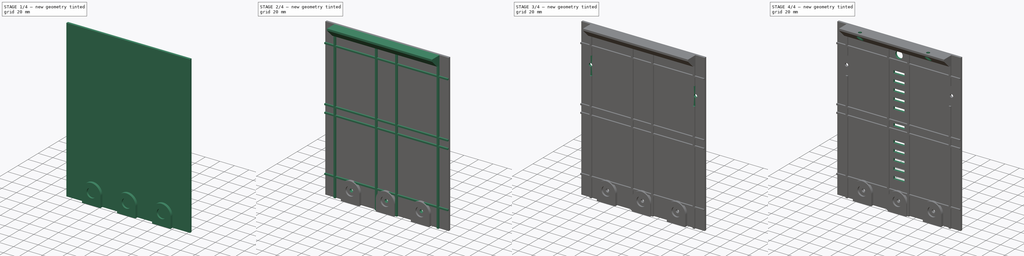
[diagram: build sequence overview — one tinted view per stage of 4, left to right]
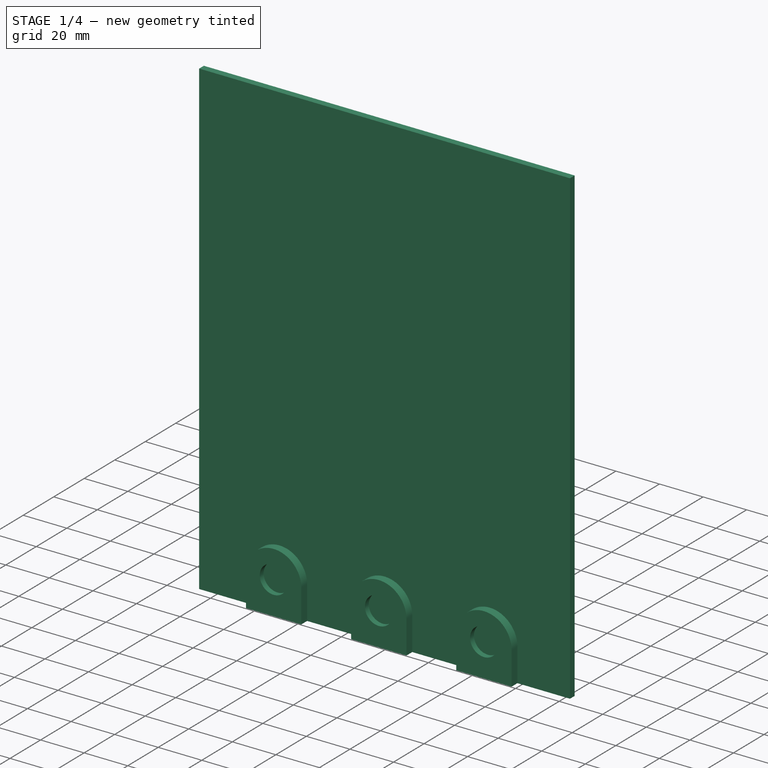
[diagram: stage 1 of 4 — iso view after this stage's code; geometry added in this stage tinted green]
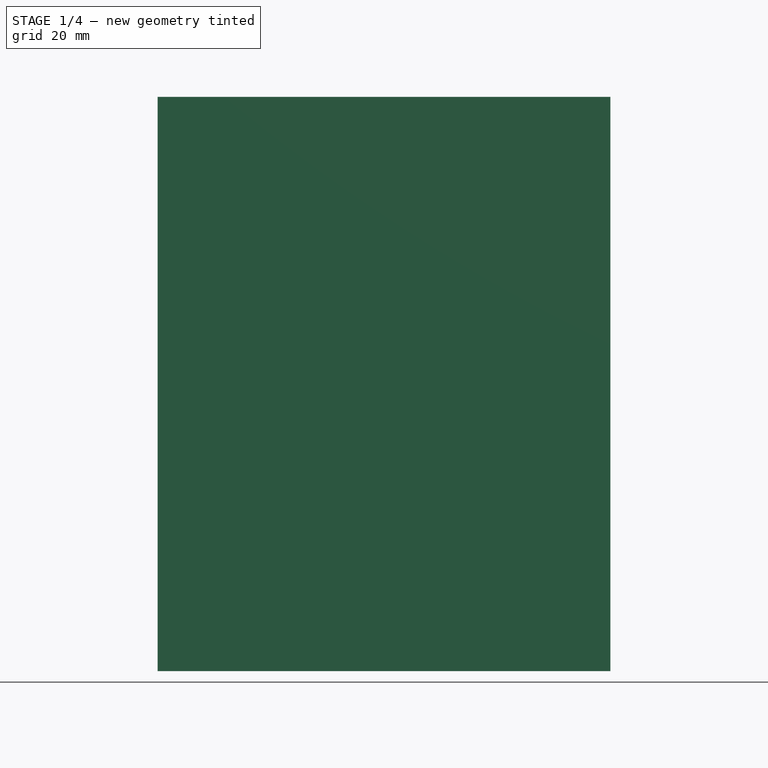
[diagram: stage 1 of 4 — front view after this stage's code; geometry added in this stage tinted green]
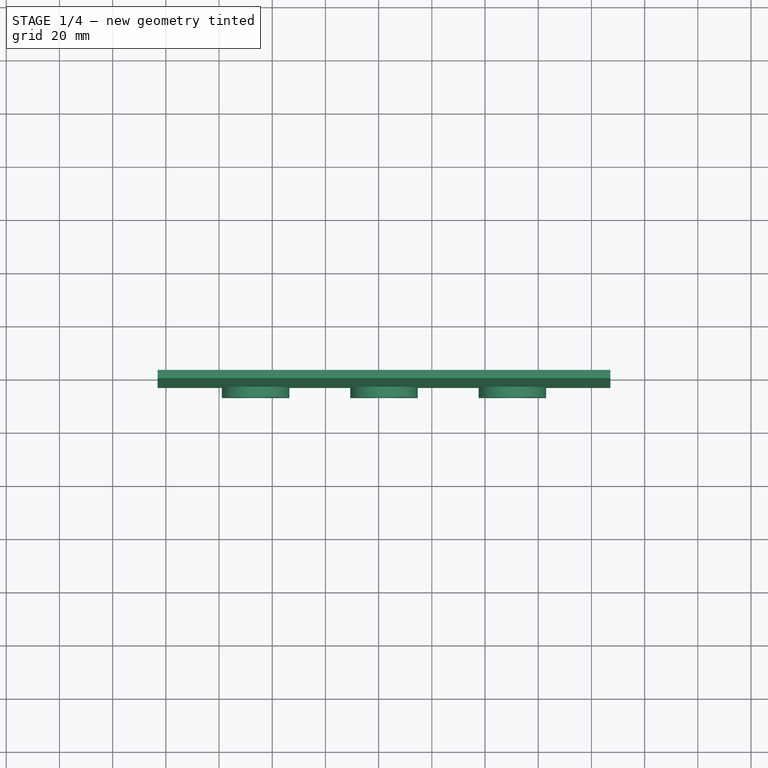
[diagram: stage 1 of 4 — top view after this stage's code; geometry added in this stage tinted green]
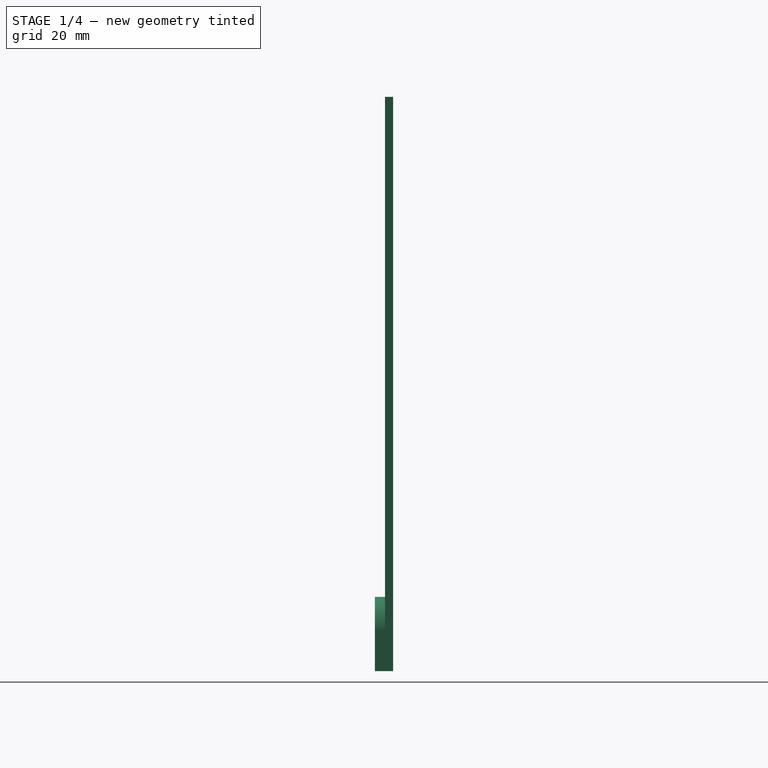
[diagram: stage 1 of 4 — right view after this stage's code; geometry added in this stage tinted green]
FCSTD DOCUMENT  (FreeCAD 0.18R16117 (Git))
Label: LittleSide2_1
License: All rights reserved
LicenseURL: http://en.wikipedia.org/wiki/All_rights_reserved
objects: Sketcher::SketchObject×11, PartDesign::Pocket×6, PartDesign::Pad×4, PartDesign::Hole×1, PartDesign::Body×1
note: 34 computed .brp shape members not serialized (recipe doc carries the construction recipe); baked Part::Feature solids carry a one-line shape summary decoded from their .brp

FEATURE [Sketcher::SketchObject] Sketch
  MapMode = 5
  Placement = pos=(0,0,0) rot=(1,0,0;1.5708rad)
  Support = -> [XZ_Plane]
  sketch-geometry (4):
    g0: LineSegment StartX=-83.0744 StartY=108.365 StartZ=0 EndX=87.1056 EndY=108.365 EndZ=0
    g1: LineSegment StartX=87.1056 StartY=108.365 StartZ=0 EndX=87.1056 EndY=-107.535 EndZ=0
    g2: LineSegment StartX=87.1056 StartY=-107.535 StartZ=0 EndX=-83.0744 EndY=-107.535 EndZ=0
    g3: LineSegment StartX=-83.0744 StartY=-107.535 StartZ=0 EndX=-83.0744 EndY=108.365 EndZ=0
  constraints (10):
    c: Coincident(g0,g1)
    c: Coincident(g1,g2)
    c: Coincident(g2,g3)
    c: Coincident(g3,g0)
    c: Horizontal(g0)
    c: Horizontal(g2)
    c: Vertical(g1)
    c: Vertical(g3)
    c: Distance(g2) = 170.18
    c: Distance(g1) = 215.9
FEATURE [PartDesign::Pad] Pad
  Length = 3.048
  Length2 = 100
  Placement = pos=(0,0,0) rot=(1,0,0;1.5708rad)
  Profile = -> Sketch
  Type = 0
FEATURE [Sketcher::SketchObject] Sketch001
  ExternalGeometry = -> [Pad]
  MapMode = 5
  Placement = pos=(0,-3.048,0) rot=(1,0,0;1.5708rad)
  Support = -> [Pad]
  sketch-geometry (17):
    g0: LineSegment [constr] StartX=-83.0744 StartY=-92.2954 StartZ=0 EndX=-46.2444 EndY=-92.2954 EndZ=0
    g1: LineSegment [constr] StartX=-46.2444 StartY=-92.2954 StartZ=0 EndX=2.01561 EndY=-92.2954 EndZ=0
    g2: LineSegment [constr] StartX=2.01561 StartY=-92.2954 StartZ=0 EndX=50.2756 EndY=-92.2954 EndZ=0
    g3: LineSegment [constr] StartX=50.2756 StartY=-92.2954 StartZ=0 EndX=87.1056 EndY=-92.2954 EndZ=0
    g4: LineSegment [constr] StartX=-46.2444 StartY=-92.2954 StartZ=0 EndX=-46.2444 EndY=-107.535 EndZ=0
    g5: LineSegment StartX=-33.5444 StartY=-92.2954 StartZ=0 EndX=-33.5444 EndY=-107.535 EndZ=0
    g6: LineSegment StartX=-33.5444 StartY=-107.535 StartZ=0 EndX=-58.9444 EndY=-107.535 EndZ=0
    g7: LineSegment StartX=-58.9444 StartY=-107.535 StartZ=0 EndX=-58.9444 EndY=-92.2954 EndZ=0
    g8: LineSegment StartX=14.7156 StartY=-92.2954 StartZ=0 EndX=14.7156 EndY=-107.535 EndZ=0
    g9: LineSegment StartX=14.7156 StartY=-107.535 StartZ=0 EndX=-10.6844 EndY=-107.535 EndZ=0
    g10: LineSegment StartX=-10.6844 StartY=-107.535 StartZ=0 EndX=-10.6844 EndY=-92.2954 EndZ=0
    g11: LineSegment StartX=62.9756 StartY=-92.2954 StartZ=0 EndX=62.9756 EndY=-107.535 EndZ=0
    g12: LineSegment StartX=62.9756 StartY=-107.535 StartZ=0 EndX=37.5756 EndY=-107.535 EndZ=0
    g13: LineSegment StartX=37.5756 StartY=-107.535 StartZ=0 EndX=37.5756 EndY=-92.2954 EndZ=0
    g14: ArcOfCircle CenterX=-46.2444 CenterY=-92.2954 CenterZ=0 NormalX=0 NormalY=0 NormalZ=1 AngleXU=0 Radius=12.7 StartAngle=-9e-16 EndAngle=3.14159
    g15: ArcOfCircle CenterX=2.01561 CenterY=-92.2954 CenterZ=0 NormalX=0 NormalY=0 NormalZ=1 AngleXU=0 Radius=12.7 StartAngle=4e-16 EndAngle=3.14159
    g16: ArcOfCircle CenterX=50.2756 CenterY=-92.2954 CenterZ=0 NormalX=0 NormalY=0 NormalZ=1 AngleXU=0 Radius=12.7 StartAngle=-9e-16 EndAngle=3.14159
  constraints (52):
    c: PointOnObject(g0,g-4)
    c: Horizontal(g0)
    c: Coincident(g1,g0)
    c: Horizontal(g1)
    c: Coincident(g2,g1)
    c: Horizontal(g2)
    c: Coincident(g3,g2)
    c: PointOnObject(g3,g-5)
    c: Horizontal(g3)
    c: Coincident(g4,g0)
    c: PointOnObject(g4,g-3)
    c: Vertical(g4)
    c: Equal(g0,g3)
    c: Equal(g1,g2)
    c: Distance(g4) = 15.24
    c: Distance(g0) = 36.83
    c: Coincident(g5,g6)
    c: Coincident(g6,g7)
    c: Horizontal(g6)
    c: Vertical(g5)
    c: Vertical(g7)
    c: PointOnObject(g7,g0)
    c: PointOnObject(g5,g-3)
    c: Coincident(g8,g9)
    c: Coincident(g9,g10)
    c: Horizontal(g9)
    c: Vertical(g8)
    c: Vertical(g10)
    c: PointOnObject(g10,g1)
    c: PointOnObject(g8,g-3)
    c: Coincident(g11,g12)
    c: Coincident(g12,g13)
    c: Horizontal(g12)
    c: Vertical(g11)
    c: Vertical(g13)
    c: PointOnObject(g13,g2)
    c: PointOnObject(g12,g-3)
    c: Coincident(g14,g0)
    c: Coincident(g14,g5)
    c: Coincident(g14,g7)
    c: Coincident(g15,g1)
    c: Coincident(g15,g10)
    c: Coincident(g15,g8)
    c: Coincident(g16,g2)
    c: Coincident(g16,g13)
    c: Coincident(g16,g11)
    c: PointOnObject(g11,g3)
    c: PointOnObject(g8,g2)
    c: PointOnObject(g5,g1)
    c: Diameter(g14) = 25.4
    c: Equal(g14,g15)
    c: Equal(g15,g16)
FEATURE [PartDesign::Pad] Pad001
  BaseFeature = -> Pad
  Length = 3.81
  Length2 = 100
  Placement = pos=(0,0,0) rot=(1,0,0;1.5708rad)
  Profile = -> Sketch001
  Type = 0
FEATURE [Sketcher::SketchObject] Sketch002
  ExternalGeometry = -> [Pad001]
  MapMode = 5
  Placement = pos=(0,-6.858,0) rot=(1,0,0;1.5708rad)
  Support = -> [Pad001]
  sketch-geometry (8):
    g0: LineSegment [constr] StartX=-83.0744 StartY=-92.2954 StartZ=0 EndX=-46.2444 EndY=-92.2954 EndZ=0
    g1: LineSegment [constr] StartX=-46.2444 StartY=-92.2954 StartZ=0 EndX=2.01561 EndY=-92.2954 EndZ=0
    g2: LineSegment [constr] StartX=2.01561 StartY=-92.2954 StartZ=0 EndX=50.2756 EndY=-92.2954 EndZ=0
    g3: LineSegment [constr] StartX=50.2756 StartY=-92.2954 StartZ=0 EndX=87.1056 EndY=-92.2954 EndZ=0
    g4: LineSegment [constr] StartX=-46.2444 StartY=-92.2954 StartZ=0 EndX=-46.2444 EndY=-107.535 EndZ=0
    g5: Circle CenterX=-46.2444 CenterY=-92.2954 CenterZ=0 NormalX=0 NormalY=0 NormalZ=1 AngleXU=0 Radius=6.35
    g6: Circle CenterX=2.01561 CenterY=-92.2954 CenterZ=0 NormalX=0 NormalY=0 NormalZ=1 AngleXU=0 Radius=6.35
    g7: Circle CenterX=50.2756 CenterY=-92.2954 CenterZ=0 NormalX=0 NormalY=0 NormalZ=1 AngleXU=0 Radius=6.35
  constraints (22):
    c: PointOnObject(g0,g-3)
    c: Horizontal(g0)
    c: Coincident(g1,g0)
    c: Horizontal(g1)
    c: Coincident(g2,g1)
    c: Horizontal(g2)
    c: Coincident(g3,g2)
    c: PointOnObject(g3,g-7)
    c: Horizontal(g3)
    c: Coincident(g4,g0)
    c: PointOnObject(g4,g-4)
    c: Vertical(g4)
    c: Equal(g0,g3)
    c: Equal(g2,g1)
    c: Distance(g0) = 36.83
    c: Distance(g4) = 15.24
    c: Coincident(g5,g0)
    c: Coincident(g7,g2)
    c: Equal(g5,g6)
    c: Equal(g6,g7)
    c: Diameter(g5) = 12.7
    c: Coincident(g1,g6)
FEATURE [PartDesign::Pocket] Pocket
  BaseFeature = -> Pad001
  Length = 2.54
  Length2 = 100
  Placement = pos=(0,0,0) rot=(1,0,0;1.5708rad)
  Profile = -> Sketch002
  Type = 0
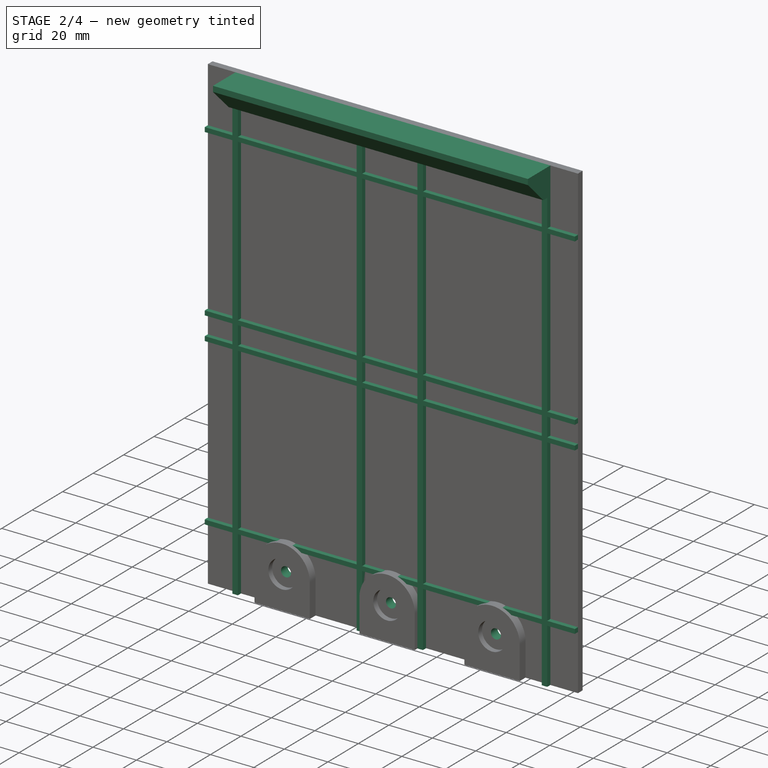
[diagram: stage 2 of 4 — iso view after this stage's code; geometry added in this stage tinted green]
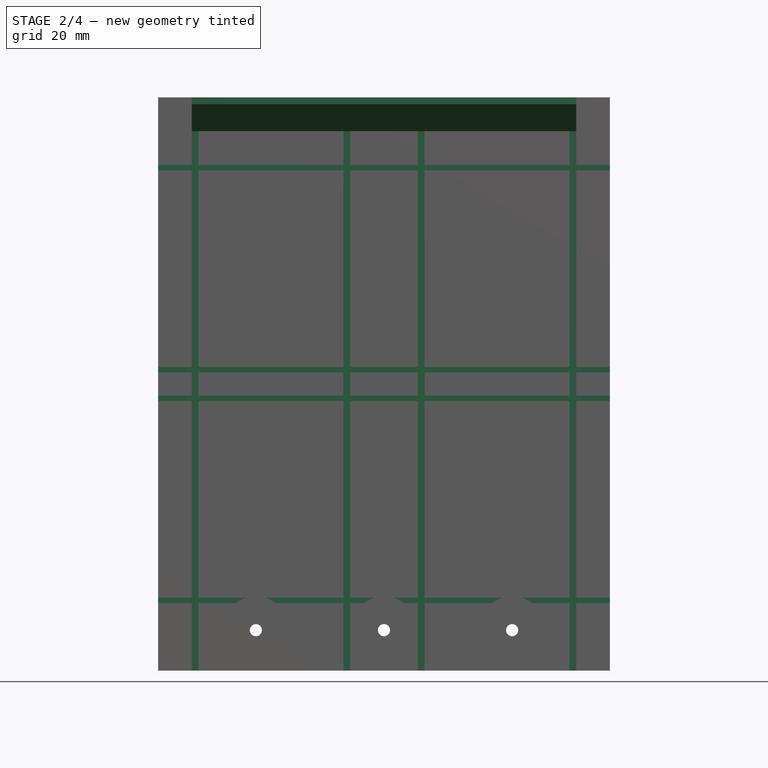
[diagram: stage 2 of 4 — front view after this stage's code; geometry added in this stage tinted green]
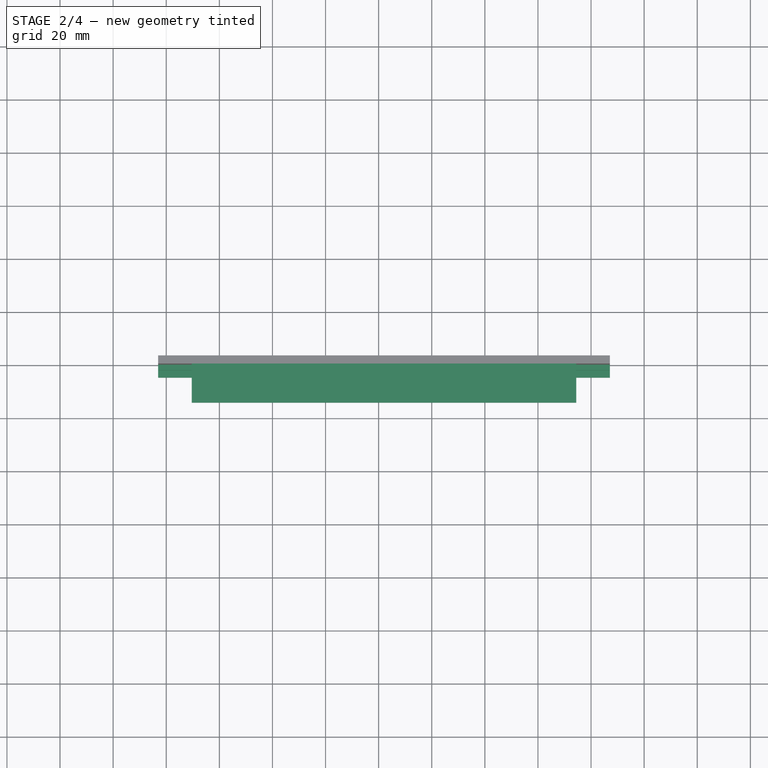
[diagram: stage 2 of 4 — top view after this stage's code; geometry added in this stage tinted green]
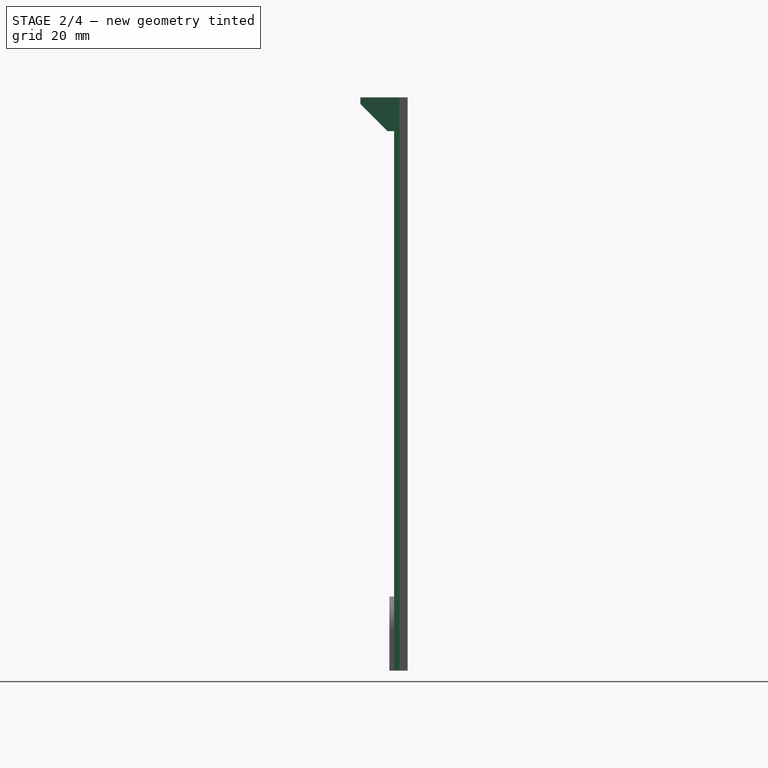
[diagram: stage 2 of 4 — right view after this stage's code; geometry added in this stage tinted green]
FEATURE [Sketcher::SketchObject] Sketch003
  ExternalGeometry = -> [Pocket]
  MapMode = 5
  Placement = pos=(0,-4.318,3e-16) rot=(1,0,0;1.5708rad)
  Support = -> [Pocket]
  sketch-geometry (3):
    g0: Circle CenterX=-46.2444 CenterY=-92.2954 CenterZ=0 NormalX=0 NormalY=0 NormalZ=1 AngleXU=0 Radius=2.286
    g1: Circle CenterX=2.01561 CenterY=-92.2954 CenterZ=0 NormalX=0 NormalY=0 NormalZ=1 AngleXU=0 Radius=2.286
    g2: Circle CenterX=50.2756 CenterY=-92.2954 CenterZ=0 NormalX=0 NormalY=0 NormalZ=1 AngleXU=0 Radius=2.286
  constraints (6):
    c: Coincident(g0,g-3)
    c: Coincident(g1,g-4)
    c: Coincident(g2,g-5)
    c: Equal(g0,g1)
    c: Equal(g1,g2)
    c: Diameter(g0) = 4.572
FEATURE [PartDesign::Pocket] Pocket001
  BaseFeature = -> Pocket
  Length = 4.318
  Length2 = 100
  Placement = pos=(0,0,0) rot=(1,0,0;1.5708rad)
  Profile = -> Sketch003
  Type = 0
FEATURE [Sketcher::SketchObject] Sketch004
  ExternalGeometry = -> [Pocket001]
  MapMode = 5
  Placement = pos=(0,-3.048,0) rot=(1,0,0;1.5708rad)
  Support = -> [Pocket001]
  sketch-geometry (191):
    g0: LineSegment [constr] StartX=-70.3744 StartY=108.365 StartZ=0 EndX=-67.8344 EndY=108.365 EndZ=0
    g1: LineSegment [constr] StartX=-67.8344 StartY=108.365 StartZ=0 EndX=-67.8344 EndY=-107.535 EndZ=0
    g2: LineSegment [constr] StartX=-67.8344 StartY=-107.535 StartZ=0 EndX=-70.3744 EndY=-107.535 EndZ=0
    g3: LineSegment [constr] StartX=-70.3744 StartY=-107.535 StartZ=0 EndX=-70.3744 EndY=108.365 EndZ=0
    g4: LineSegment [constr] StartX=-10.6844 StartY=108.365 StartZ=0 EndX=-13.2244 EndY=108.365 EndZ=0
    g5: LineSegment [constr] StartX=-13.2244 StartY=108.365 StartZ=0 EndX=-13.2244 EndY=-107.535 EndZ=0
    g6: LineSegment [constr] StartX=-13.2244 StartY=-107.535 StartZ=0 EndX=-10.6844 EndY=-107.535 EndZ=0
    g7: LineSegment [constr] StartX=-10.6844 StartY=-107.535 StartZ=0 EndX=-10.6844 EndY=108.365 EndZ=0
    g8: LineSegment [constr] StartX=14.7156 StartY=-107.535 StartZ=0 EndX=17.2556 EndY=-107.535 EndZ=0
    g9: LineSegment [constr] StartX=17.2556 StartY=-107.535 StartZ=0 EndX=17.2556 EndY=108.365 EndZ=0
    g10: LineSegment [constr] StartX=17.2556 StartY=108.365 StartZ=0 EndX=14.7156 EndY=108.365 EndZ=0
    g11: LineSegment [constr] StartX=14.7156 StartY=108.365 StartZ=0 EndX=14.7156 EndY=-107.535 EndZ=0
    g12: LineSegment [constr] StartX=71.8656 StartY=108.365 StartZ=0 EndX=74.4056 EndY=108.365 EndZ=0
    g13: LineSegment [constr] StartX=74.4056 StartY=108.365 StartZ=0 EndX=74.4056 EndY=-107.535 EndZ=0
    g14: LineSegment [constr] StartX=74.4056 StartY=-107.535 StartZ=0 EndX=71.8656 EndY=-107.535 EndZ=0
    g15: LineSegment [constr] StartX=71.8656 StartY=-107.535 StartZ=0 EndX=71.8656 EndY=108.365 EndZ=0
    g16: LineSegment [constr] StartX=-83.0744 StartY=82.9646 StartZ=0 EndX=87.1056 EndY=82.9646 EndZ=0
    g17: LineSegment [constr] StartX=87.1056 StartY=82.9646 StartZ=0 EndX=87.1056 EndY=80.9326 EndZ=0
    g18: LineSegment [constr] StartX=87.1056 StartY=80.9326 StartZ=0 EndX=-83.0744 EndY=80.9326 EndZ=0
    g19: LineSegment [constr] StartX=-83.0744 StartY=80.9326 StartZ=0 EndX=-83.0744 EndY=82.9646 EndZ=0
    g20: LineSegment [constr] StartX=-83.0744 StartY=6.76464 StartZ=0 EndX=87.1056 EndY=6.76464 EndZ=0
    g21: LineSegment [constr] StartX=87.1056 StartY=6.76464 StartZ=0 EndX=87.1056 EndY=4.73264 EndZ=0
    g22: LineSegment [constr] StartX=87.1056 StartY=4.73264 StartZ=0 EndX=-83.0744 EndY=4.73264 EndZ=0
    g23: LineSegment [constr] StartX=-83.0744 StartY=4.73264 StartZ=0 EndX=-83.0744 EndY=6.76464 EndZ=0
    g24: LineSegment [constr] StartX=-83.0744 StartY=-3.90336 StartZ=0 EndX=87.1056 EndY=-3.90336 EndZ=0
    g25: LineSegment [constr] StartX=87.1056 StartY=-3.90336 StartZ=0 EndX=87.1056 EndY=-5.93536 EndZ=0
    g26: LineSegment [constr] StartX=87.1056 StartY=-5.93536 StartZ=0 EndX=-83.0744 EndY=-5.93536 EndZ=0
    g27: LineSegment [constr] StartX=-83.0744 StartY=-5.93536 StartZ=0 EndX=-83.0744 EndY=-3.90336 EndZ=0
    g28: LineSegment [constr] StartX=-83.0744 StartY=-80.1034 StartZ=0 EndX=87.1056 EndY=-80.1034 EndZ=0
    g29: LineSegment [constr] StartX=87.1056 StartY=-80.1034 StartZ=0 EndX=87.1056 EndY=-82.1354 EndZ=0
    g30: LineSegment [constr] StartX=87.1056 StartY=-82.1354 StartZ=0 EndX=-83.0744 EndY=-82.1354 EndZ=0
    g31: LineSegment [constr] StartX=-83.0744 StartY=-82.1354 StartZ=0 EndX=-83.0744 EndY=-80.1034 EndZ=0
    g32: GeomPoint X=-70.3744 Y=82.9646 Z=0
    g33: GeomPoint X=-67.8344 Y=82.9646 Z=0
    g34: GeomPoint X=-67.8344 Y=80.9326 Z=0
    g35: GeomPoint X=-70.3744 Y=80.9326 Z=0
    g36: GeomPoint X=-13.2244 Y=82.9646 Z=0
    g37: GeomPoint X=-10.6844 Y=82.9646 Z=0
    g38: GeomPoint X=-13.2244 Y=80.9326 Z=0
    g39: GeomPoint X=-10.6844 Y=80.9326 Z=0
    g40: GeomPoint X=14.7156 Y=80.9326 Z=0
    g41: GeomPoint X=14.7156 Y=82.9646 Z=0
    g42: GeomPoint X=17.2556 Y=80.9326 Z=0
    g43: GeomPoint X=17.2556 Y=82.9646 Z=0
    g44: GeomPoint X=71.8656 Y=82.9646 Z=0
    g45: GeomPoint X=74.4056 Y=82.9646 Z=0
    g46: GeomPoint X=74.4056 Y=80.9326 Z=0
    g47: GeomPoint X=71.8656 Y=80.9326 Z=0
    g48: GeomPoint X=-70.3744 Y=6.76464 Z=0
    g49: GeomPoint X=-70.3744 Y=4.73264 Z=0
    g50: GeomPoint X=-67.8344 Y=4.73264 Z=0
    g51: GeomPoint X=-67.8344 Y=6.76464 Z=0
    g52: GeomPoint X=-13.2244 Y=6.76464 Z=0
    g53: GeomPoint X=-10.6844 Y=6.76464 Z=0
    g54: GeomPoint X=-13.2244 Y=4.73264 Z=0
    g55: GeomPoint X=-10.6844 Y=4.73264 Z=0
    g56: GeomPoint X=-13.2244 Y=-3.90336 Z=0
    g57: GeomPoint X=-10.6844 Y=-3.90336 Z=0
    g58: GeomPoint X=-13.2244 Y=-5.93536 Z=0
    g59: GeomPoint X=-10.6844 Y=-5.93536 Z=0
    g60: GeomPoint X=14.7156 Y=-3.90336 Z=0
    g61: GeomPoint X=17.2556 Y=-3.90336 Z=0
    g62: GeomPoint X=14.7156 Y=-5.93536 Z=0
    g63: GeomPoint X=17.2556 Y=-5.93536 Z=0
    g64: GeomPoint X=14.7156 Y=6.76464 Z=0
    g65: GeomPoint X=17.2556 Y=6.76464 Z=0
    g66: GeomPoint X=14.7156 Y=4.73264 Z=0
    g67: GeomPoint X=17.2556 Y=4.73264 Z=0
    g68: GeomPoint X=71.8656 Y=6.76464 Z=0
    g69: GeomPoint X=71.8656 Y=4.73264 Z=0
    g70: GeomPoint X=74.4056 Y=6.76464 Z=0
    g71: GeomPoint X=74.4056 Y=4.73264 Z=0
    g72: GeomPoint X=71.8656 Y=-3.90336 Z=0
    g73: GeomPoint X=74.4056 Y=-3.90336 Z=0
    g74: GeomPoint X=74.4056 Y=-5.93536 Z=0
    g75: GeomPoint X=71.8656 Y=-5.93536 Z=0
    g76: GeomPoint X=-70.3744 Y=-80.1034 Z=0
    g77: GeomPoint X=-70.3744 Y=-82.1354 Z=0
    g78: GeomPoint X=-67.8344 Y=-82.1354 Z=0
    g79: GeomPoint X=-67.8344 Y=-80.1034 Z=0
    g80: GeomPoint X=-13.2244 Y=-80.1034 Z=0
    g81: GeomPoint X=-10.6844 Y=-80.1034 Z=0
    g82: GeomPoint X=-10.6844 Y=-82.1354 Z=0
    g83: GeomPoint X=-13.2244 Y=-82.1354 Z=0
    g84: GeomPoint X=14.7156 Y=-80.1034 Z=0
    g85: GeomPoint X=17.2556 Y=-80.1034 Z=0
    g86: GeomPoint X=17.2556 Y=-82.1354 Z=0
    g87: GeomPoint X=14.7156 Y=-82.1354 Z=0
    g88: GeomPoint X=71.8656 Y=-80.1034 Z=0
    g89: GeomPoint X=74.4056 Y=-80.1034 Z=0
    g90: GeomPoint X=71.8656 Y=-82.1354 Z=0
    g91: GeomPoint X=74.4056 Y=-82.1354 Z=0
    g92: GeomPoint X=-70.3744 Y=-3.90336 Z=0
    g93: GeomPoint X=-67.8344 Y=-3.90336 Z=0
    g94: GeomPoint X=-67.8344 Y=-5.93536 Z=0
    g95: GeomPoint X=-70.3744 Y=-5.93536 Z=0
    g96: LineSegment StartX=-70.3744 StartY=108.365 StartZ=0 EndX=-67.8344 EndY=108.365 EndZ=0
    g97: LineSegment StartX=-67.8344 StartY=108.365 StartZ=0 EndX=-67.8344 EndY=82.9646 EndZ=0
    g98: LineSegment StartX=-67.8344 StartY=82.9646 StartZ=0 EndX=-13.2244 EndY=82.9646 EndZ=0
    g99: LineSegment StartX=-13.2244 StartY=82.9646 StartZ=0 EndX=-13.2244 EndY=108.365 EndZ=0
    g100: LineSegment StartX=-13.2244 StartY=108.365 StartZ=0 EndX=-10.6844 EndY=108.365 EndZ=0
    g101: LineSegment StartX=14.7156 StartY=108.365 StartZ=0 EndX=17.2556 EndY=108.365 EndZ=0
    g102: LineSegment StartX=71.8656 StartY=108.365 StartZ=0 EndX=74.4056 EndY=108.365 EndZ=0
    g103: LineSegment StartX=87.1056 StartY=82.9646 StartZ=0 EndX=87.1056 EndY=80.9326 EndZ=0
    g104: LineSegment StartX=87.1056 StartY=6.76464 StartZ=0 EndX=87.1056 EndY=4.73264 EndZ=0
    g105: LineSegment StartX=87.1056 StartY=-3.90336 StartZ=0 EndX=87.1056 EndY=-5.93536 EndZ=0
    g106: LineSegment StartX=87.1056 StartY=-80.1034 StartZ=0 EndX=87.1056 EndY=-82.1354 EndZ=0
    g107: LineSegment StartX=74.4056 StartY=-107.535 StartZ=0 EndX=71.8656 EndY=-107.535 EndZ=0
    g108: LineSegment StartX=17.2556 StartY=-107.535 StartZ=0 EndX=14.7156 EndY=-107.535 EndZ=0
    g109: LineSegment StartX=-10.6844 StartY=-107.535 StartZ=0 EndX=-13.2244 EndY=-107.535 EndZ=0
    g110: LineSegment StartX=-67.8344 StartY=-107.535 StartZ=0 EndX=-70.3744 EndY=-107.535 EndZ=0
    g111: LineSegment StartX=-83.0744 StartY=-82.1354 StartZ=0 EndX=-83.0744 EndY=-80.1034 EndZ=0
    g112: LineSegment StartX=-83.0744 StartY=-5.93536 StartZ=0 EndX=-83.0744 EndY=-3.90336 EndZ=0
    g113: LineSegment StartX=-83.0744 StartY=4.73264 StartZ=0 EndX=-83.0744 EndY=6.76464 EndZ=0
    g114: LineSegment StartX=-83.0744 StartY=80.9326 StartZ=0 EndX=-83.0744 EndY=82.9646 EndZ=0
    g115: LineSegment StartX=-70.3744 StartY=108.365 StartZ=0 EndX=-70.3744 EndY=82.9646 EndZ=0
    g116: LineSegment StartX=-70.3744 StartY=82.9646 StartZ=0 EndX=-83.0744 EndY=82.9646 EndZ=0
    g117: LineSegment StartX=-83.0744 StartY=80.9326 StartZ=0 EndX=-70.3744 EndY=80.9326 EndZ=0
    g118: LineSegment StartX=-70.3744 StartY=80.9326 StartZ=0 EndX=-70.3744 EndY=6.76464 EndZ=0
    g119: LineSegment StartX=-70.3744 StartY=6.76464 StartZ=0 EndX=-83.0744 EndY=6.76464 EndZ=0
    g120: LineSegment StartX=-83.0744 StartY=4.73264 StartZ=0 EndX=-70.3744 EndY=4.73264 EndZ=0
    g121: LineSegment StartX=-70.3744 StartY=4.73264 StartZ=0 EndX=-70.3744 EndY=-3.90336 EndZ=0
    g122: LineSegment StartX=-70.3744 StartY=-5.93536 StartZ=0 EndX=-70.3744 EndY=-80.1034 EndZ=0
    g123: LineSegment StartX=-70.3744 StartY=-82.1354 StartZ=0 EndX=-70.3744 EndY=-107.535 EndZ=0
    g124: LineSegment StartX=-67.8344 StartY=-107.535 StartZ=0 EndX=-67.8344 EndY=-82.1354 EndZ=0
    g125: LineSegment StartX=-67.8344 StartY=-80.1034 StartZ=0 EndX=-67.8344 EndY=-5.93536 EndZ=0
    g126: LineSegment StartX=-67.8344 StartY=-3.90336 StartZ=0 EndX=-67.8344 EndY=4.73264 EndZ=0
    g127: LineSegment StartX=-67.8344 StartY=6.76464 StartZ=0 EndX=-67.8344 EndY=80.9326 EndZ=0
    g128: LineSegment StartX=-67.8344 StartY=80.9326 StartZ=0 EndX=-13.2244 EndY=80.9326 EndZ=0
    g129: LineSegment StartX=-10.6844 StartY=108.365 StartZ=0 EndX=-10.6844 EndY=82.9646 EndZ=0
    g130: LineSegment StartX=-10.6844 StartY=80.9326 StartZ=0 EndX=14.7156 EndY=80.9326 EndZ=0
    g131: LineSegment StartX=-10.6844 StartY=82.9646 StartZ=0 EndX=14.7156 EndY=82.9646 EndZ=0
    g132: LineSegment StartX=14.7156 StartY=108.365 StartZ=0 EndX=14.7156 EndY=82.9646 EndZ=0
    g133: LineSegment StartX=17.2556 StartY=108.365 StartZ=0 EndX=17.2556 EndY=82.9646 EndZ=0
    g134: LineSegment StartX=17.2556 StartY=82.9646 StartZ=0 EndX=71.8656 EndY=82.9646 EndZ=0
    g135: LineSegment StartX=71.8656 StartY=82.9646 StartZ=0 EndX=71.8656 EndY=108.365 EndZ=0
    g136: LineSegment StartX=74.4056 StartY=108.365 StartZ=0 EndX=74.4056 EndY=82.9646 EndZ=0
    g137: LineSegment StartX=74.4056 StartY=82.9646 StartZ=0 EndX=87.1056 EndY=82.9646 EndZ=0
    g138: LineSegment StartX=74.4056 StartY=80.9326 StartZ=0 EndX=87.1056 EndY=80.9326 EndZ=0
    g139: LineSegment StartX=74.4056 StartY=80.9326 StartZ=0 EndX=74.4056 EndY=6.76464 EndZ=0
    g140: LineSegment StartX=74.4056 StartY=6.76464 StartZ=0 EndX=87.1056 EndY=6.76464 EndZ=0
    g141: LineSegment StartX=74.4056 StartY=4.73264 StartZ=0 EndX=87.1056 EndY=4.73264 EndZ=0
    g142: LineSegment StartX=74.4056 StartY=4.73264 StartZ=0 EndX=74.4056 EndY=-3.90336 EndZ=0
    g143: LineSegment StartX=74.4056 StartY=-3.90336 StartZ=0 EndX=87.1056 EndY=-3.90336 EndZ=0
    g144: LineSegment StartX=87.1056 StartY=-5.93536 StartZ=0 EndX=74.4056 EndY=-5.93536 EndZ=0
    g145: LineSegment StartX=74.4056 StartY=-5.93536 StartZ=0 EndX=74.4056 EndY=-80.1034 EndZ=0
    g146: LineSegment StartX=74.4056 StartY=-80.1034 StartZ=0 EndX=87.1056 EndY=-80.1034 EndZ=0
    g147: LineSegment StartX=74.4056 StartY=-82.1354 StartZ=0 EndX=87.1056 EndY=-82.1354 EndZ=0
    g148: LineSegment StartX=74.4056 StartY=-82.1354 StartZ=0 EndX=74.4056 EndY=-107.535 EndZ=0
    g149: LineSegment StartX=71.8656 StartY=-107.535 StartZ=0 EndX=71.8656 EndY=-82.1354 EndZ=0
    g150: LineSegment StartX=71.8656 StartY=-80.1034 StartZ=0 EndX=71.8656 EndY=-5.93536 EndZ=0
    g151: LineSegment StartX=71.8656 StartY=-3.90336 StartZ=0 EndX=71.8656 EndY=4.73264 EndZ=0
    g152: LineSegment StartX=71.8656 StartY=6.76464 StartZ=0 EndX=71.8656 EndY=80.9326 EndZ=0
    g153: LineSegment StartX=71.8656 StartY=80.9326 StartZ=0 EndX=17.2556 EndY=80.9326 EndZ=0
    g154: LineSegment StartX=17.2556 StartY=80.9326 StartZ=0 EndX=17.2556 EndY=6.76464 EndZ=0
    g155: LineSegment StartX=17.2556 StartY=4.73264 StartZ=0 EndX=17.2556 EndY=-80.1034 EndZ=0
    g156: LineSegment StartX=17.2556 StartY=-82.1354 StartZ=0 EndX=17.2556 EndY=-107.535 EndZ=0
    g157: LineSegment StartX=14.7156 StartY=-107.535 StartZ=0 EndX=14.7156 EndY=-82.1354 EndZ=0
    g158: LineSegment StartX=14.7156 StartY=-80.1034 StartZ=0 EndX=14.7156 EndY=-5.93536 EndZ=0
    g159: LineSegment StartX=14.7156 StartY=-3.90336 StartZ=0 EndX=14.7156 EndY=4.73264 EndZ=0
    g160: LineSegment StartX=14.7156 StartY=6.76464 StartZ=0 EndX=14.7156 EndY=80.9326 EndZ=0
    g161: LineSegment StartX=17.2556 StartY=6.76464 StartZ=0 EndX=71.8656 EndY=6.76464 EndZ=0
    g162: LineSegment StartX=17.2556 StartY=4.73264 StartZ=0 EndX=71.8656 EndY=4.73264 EndZ=0
    g163: LineSegment StartX=71.8656 StartY=-3.90336 StartZ=0 EndX=17.2556 EndY=-3.90336 EndZ=0
    g164: LineSegment StartX=17.2556 StartY=-5.93536 StartZ=0 EndX=71.8656 EndY=-5.93536 EndZ=0
    g165: LineSegment StartX=17.2556 StartY=-80.1034 StartZ=0 EndX=71.8656 EndY=-80.1034 EndZ=0
    g166: LineSegment StartX=17.2556 StartY=-82.1354 StartZ=0 EndX=71.8656 EndY=-82.1354 EndZ=0
    g167: LineSegment StartX=-10.6844 StartY=-80.1034 StartZ=0 EndX=14.7156 EndY=-80.1034 EndZ=0
    g168: LineSegment StartX=-10.6844 StartY=-82.1354 StartZ=0 EndX=14.7156 EndY=-82.1354 EndZ=0
    g169: LineSegment StartX=-10.6844 StartY=-107.535 StartZ=0 EndX=-10.6844 EndY=-82.1354 EndZ=0
    g170: LineSegment StartX=-13.2244 StartY=-82.1354 StartZ=0 EndX=-13.2244 EndY=-107.535 EndZ=0
    g171: LineSegment StartX=-13.2244 StartY=-80.1034 StartZ=0 EndX=-13.2244 EndY=-5.93536 EndZ=0
    g172: LineSegment StartX=-10.6844 StartY=-5.93536 StartZ=0 EndX=14.7156 EndY=-5.93536 EndZ=0
    g173: LineSegment StartX=14.7156 StartY=-3.90336 StartZ=0 EndX=-10.6844 EndY=-3.90336 EndZ=0
    g174: LineSegment StartX=-10.6844 StartY=4.73264 StartZ=0 EndX=14.7156 EndY=4.73264 EndZ=0
    g175: LineSegment StartX=-10.6844 StartY=-5.93536 StartZ=0 EndX=-10.6844 EndY=-80.1034 EndZ=0
    g176: LineSegment StartX=-10.6844 StartY=6.76464 StartZ=0 EndX=14.7156 EndY=6.76464 EndZ=0
    g177: LineSegment StartX=-10.6844 StartY=6.76464 StartZ=0 EndX=-10.6844 EndY=80.9326 EndZ=0
    g178: LineSegment StartX=-13.2244 StartY=80.9326 StartZ=0 EndX=-13.2244 EndY=6.76464 EndZ=0
    g179: LineSegment StartX=-83.0744 StartY=-3.90336 StartZ=0 EndX=-70.3744 EndY=-3.90336 EndZ=0
    g180: LineSegment StartX=-83.0744 StartY=-5.93536 StartZ=0 EndX=-70.3744 EndY=-5.93536 EndZ=0
    g181: LineSegment StartX=-67.8344 StartY=-3.90336 StartZ=0 EndX=-13.2244 EndY=-3.90336 EndZ=0
    g182: LineSegment StartX=-13.2244 StartY=-5.93536 StartZ=0 EndX=-67.8344 EndY=-5.93536 EndZ=0
    g183: LineSegment StartX=-83.0744 StartY=-80.1034 StartZ=0 EndX=-70.3744 EndY=-80.1034 EndZ=0
    g184: LineSegment StartX=-83.0744 StartY=-82.1354 StartZ=0 EndX=-70.3744 EndY=-82.1354 EndZ=0
    g185: LineSegment StartX=-67.8344 StartY=-80.1034 StartZ=0 EndX=-13.2244 EndY=-80.1034 EndZ=0
    g186: LineSegment StartX=-13.2244 StartY=-82.1354 StartZ=0 EndX=-67.8344 EndY=-82.1354 EndZ=0
    g187: LineSegment StartX=-67.8344 StartY=6.76464 StartZ=0 EndX=-13.2244 EndY=6.76464 EndZ=0
    g188: LineSegment StartX=-13.2244 StartY=4.73264 StartZ=0 EndX=-13.2244 EndY=-3.90336 EndZ=0
    g189: LineSegment StartX=-10.6844 StartY=-3.90336 StartZ=0 EndX=-10.6844 EndY=4.73264 EndZ=0
    g190: LineSegment StartX=-13.2244 StartY=4.73264 StartZ=0 EndX=-67.8344 EndY=4.73264 EndZ=0
  constraints (414):
    c: Coincident(g0,g1)
    c: Coincident(g1,g2)
    c: Coincident(g2,g3)
    c: Coincident(g3,g0)
    c: Horizontal(g0)
    c: Horizontal(g2)
    c: Vertical(g1)
    c: Vertical(g3)
    c: PointOnObject(g0,g-3)
    c: PointOnObject(g1,g-6)
    c: Coincident(g4,g5)
    c: Coincident(g5,g6)
    c: Coincident(g6,g7)
    c: Coincident(g7,g4)
    c: Horizontal(g4)
    c: Horizontal(g6)
    c: Vertical(g5)
    c: Vertical(g7)
    c: PointOnObject(g4,g-3)
    c: PointOnObject(g5,g-9)
    c: Coincident(g8,g9)
    c: Coincident(g9,g10)
    c: Coincident(g10,g11)
    c: Coincident(g11,g8)
    c: Horizontal(g8)
    c: Horizontal(g10)
    c: Vertical(g9)
    c: Vertical(g11)
    c: PointOnObject(g9,g-3)
    c: Coincident(g12,g13)
    c: Coincident(g13,g14)
    c: Coincident(g14,g15)
    c: Coincident(g15,g12)
    c: Horizontal(g12)
    c: Horizontal(g14)
    c: Vertical(g13)
    c: Vertical(g15)
    c: PointOnObject(g12,g-3)
    c: PointOnObject(g13,g-12)
    c: PointOnObject(g8,g-9)
    c: Equal(g0,g4)
    c: Equal(g4,g10)
    c: Equal(g10,g12)
    c: Distance(g0) = 2.54
    c: Distance(g-4,g0) = 12.7
    c: Distance(g12,g-5) = 12.7
    c: Distance(g-4,g4) = 69.85
    c: Distance(g9,g-5) = 69.85
    c: Coincident(g16,g17)
    c: Coincident(g17,g18)
    c: Coincident(g18,g19)
    c: Coincident(g19,g16)
    c: Horizontal(g16)
    c: Horizontal(g18)
    c: Vertical(g17)
    c: Vertical(g19)
    c: PointOnObject(g16,g-4)
    c: PointOnObject(g17,g-5)
    c: Coincident(g20,g21)
    c: Coincident(g21,g22)
    c: Coincident(g22,g23)
    c: Coincident(g23,g20)
    c: Horizontal(g20)
    c: Horizontal(g22)
    c: Vertical(g21)
    c: Vertical(g23)
    c: PointOnObject(g20,g-4)
    c: PointOnObject(g21,g-5)
    c: Coincident(g24,g25)
    c: Coincident(g25,g26)
    c: Coincident(g26,g27)
    c: Coincident(g27,g24)
    c: Horizontal(g24)
    c: Horizontal(g26)
    c: Vertical(g25)
    c: Vertical(g27)
    c: PointOnObject(g24,g-4)
    c: PointOnObject(g25,g-5)
    c: Coincident(g28,g29)
    c: Coincident(g29,g30)
    c: Coincident(g30,g31)
    c: Coincident(g31,g28)
    c: Horizontal(g28)
    c: Horizontal(g30)
    c: Vertical(g29)
    c: Vertical(g31)
    c: PointOnObject(g28,g-4)
    c: PointOnObject(g29,g-5)
    c: Equal(g19,g23)
    c: Equal(g23,g27)
    c: Equal(g27,g31)
    c: Distance(g19) = 2.032
    c: Distance(g-4,g16) = 25.4
    c: Distance(g30,g-6) = 25.4
    c: Distance(g-6,g26) = 101.6
    c: Distance(g20,g-4) = 101.6
    c: PointOnObject(g32,g3)
    c: PointOnObject(g33,g1)
    c: PointOnObject(g34,g1)
    c: PointOnObject(g35,g3)
    c: PointOnObject(g32,g16)
    c: PointOnObject(g33,g16)
    c: PointOnObject(g34,g18)
    c: PointOnObject(g35,g18)
    c: PointOnObject(g36,g5)
    c: PointOnObject(g37,g7)
    c: PointOnObject(g38,g18)
    c: PointOnObject(g39,g7)
    c: PointOnObject(g40,g11)
    c: PointOnObject(g41,g16)
    c: PointOnObject(g43,g16)
    c: PointOnObject(g42,g9)
    c: PointOnObject(g42,g18)
    c: PointOnObject(g40,g18)
    c: PointOnObject(g41,g11)
    c: PointOnObject(g43,g9)
    c: PointOnObject(g36,g16)
    c: PointOnObject(g37,g16)
    c: PointOnObject(g39,g18)
    c: PointOnObject(g38,g5)
    c: PointOnObject(g44,g15)
    c: PointOnObject(g45,g13)
    c: PointOnObject(g46,g13)
    c: PointOnObject(g47,g15)
    c: PointOnObject(g48,g3)
    c: PointOnObject(g49,g3)
    c: PointOnObject(g50,g1)
    c: PointOnObject(g51,g1)
    c: PointOnObject(g52,g5)
    c: PointOnObject(g53,g7)
    c: PointOnObject(g54,g5)
    c: PointOnObject(g55,g7)
    c: PointOnObject(g56,g5)
    c: PointOnObject(g57,g7)
    c: PointOnObject(g58,g5)
    c: PointOnObject(g59,g7)
    c: PointOnObject(g60,g11)
    c: PointOnObject(g61,g9)
    c: PointOnObject(g62,g11)
    c: PointOnObject(g63,g9)
    c: PointOnObject(g64,g11)
    c: PointOnObject(g65,g9)
    c: PointOnObject(g66,g11)
    c: PointOnObject(g67,g9)
    c: PointOnObject(g68,g15)
    c: PointOnObject(g69,g15)
    c: PointOnObject(g70,g13)
    c: PointOnObject(g71,g13)
    c: PointOnObject(g72,g15)
    c: PointOnObject(g73,g13)
    c: PointOnObject(g74,g13)
    c: PointOnObject(g75,g15)
    c: PointOnObject(g76,g3)
    c: PointOnObject(g79,g1)
    c: PointOnObject(g81,g7)
    c: PointOnObject(g90,g15)
    c: PointOnObject(g91,g13)
    c: PointOnObject(g92,g3)
    c: PointOnObject(g93,g1)
    c: PointOnObject(g94,g1)
    c: PointOnObject(g95,g3)
    c: PointOnObject(g77,g3)
    c: PointOnObject(g78,g1)
    c: PointOnObject(g78,g30)
    c: PointOnObject(g79,g28)
    c: PointOnObject(g76,g28)
    c: PointOnObject(g77,g30)
    c: PointOnObject(g83,g30)
    c: PointOnObject(g83,g5)
    c: PointOnObject(g82,g7)
    c: PointOnObject(g82,g30)
    c: PointOnObject(g81,g28)
    c: PointOnObject(g80,g5)
    c: PointOnObject(g80,g28)
    c: PointOnObject(g84,g11)
    c: PointOnObject(g84,g28)
    c: PointOnObject(g85,g9)
    c: PointOnObject(g85,g28)
    c: PointOnObject(g86,g9)
    c: PointOnObject(g86,g30)
    c: PointOnObject(g87,g11)
    c: PointOnObject(g87,g30)
    c: PointOnObject(g90,g30)
    c: PointOnObject(g91,g30)
    c: PointOnObject(g89,g13)
    c: PointOnObject(g89,g28)
    c: PointOnObject(g88,g15)
    c: PointOnObject(g88,g28)
    c: PointOnObject(g48,g20)
    c: PointOnObject(g51,g20)
    c: PointOnObject(g50,g22)
    c: PointOnObject(g49,g22)
    c: PointOnObject(g92,g24)
    c: PointOnObject(g93,g24)
    c: PointOnObject(g95,g26)
    c: PointOnObject(g94,g26)
    c: PointOnObject(g52,g20)
    c: PointOnObject(g53,g20)
    c: PointOnObject(g54,g22)
    c: PointOnObject(g55,g22)
    c: PointOnObject(g44,g16)
    c: PointOnObject(g45,g16)
    c: PointOnObject(g47,g18)
    c: PointOnObject(g46,g18)
    c: PointOnObject(g70,g20)
    c: PointOnObject(g68,g20)
    c: PointOnObject(g69,g22)
    c: PointOnObject(g71,g22)
    c: PointOnObject(g73,g24)
    c: PointOnObject(g72,g24)
    c: PointOnObject(g75,g26)
    c: PointOnObject(g74,g26)
    c: PointOnObject(g60,g24)
    c: PointOnObject(g61,g24)
    c: PointOnObject(g63,g26)
    c: PointOnObject(g62,g26)
    c: PointOnObject(g65,g20)
    c: PointOnObject(g64,g20)
    c: PointOnObject(g66,g22)
    c: PointOnObject(g67,g22)
    c: PointOnObject(g57,g24)
    c: PointOnObject(g56,g24)
    c: PointOnObject(g58,g26)
    c: PointOnObject(g59,g26)
    c: Coincident(g96,g0)
    c: Coincident(g96,g0)
    c: Coincident(g97,g96)
    c: Coincident(g97,g33)
    c: Coincident(g98,g33)
    c: Coincident(g98,g36)
    c: Coincident(g99,g36)
    c: Coincident(g99,g4)
    c: Coincident(g100,g99)
    c: Coincident(g100,g4)
    c: Coincident(g101,g10)
    c: Coincident(g101,g9)
    c: Coincident(g102,g12)
    c: Coincident(g102,g12)
    c: Coincident(g103,g16)
    c: Coincident(g103,g17)
    c: Coincident(g104,g20)
    c: Coincident(g104,g21)
    c: Coincident(g105,g24)
    c: Coincident(g105,g25)
    c: Coincident(g106,g28)
    c: Coincident(g106,g29)
    c: Coincident(g107,g13)
    c: Coincident(g107,g14)
    c: Coincident(g108,g8)
    c: Coincident(g108,g8)
    c: Coincident(g109,g6)
    c: Coincident(g109,g5)
    c: Coincident(g110,g1)
    c: Coincident(g110,g2)
    c: Coincident(g111,g28)
    c: Coincident(g111,g30)
    c: Coincident(g112,g26)
    c: Coincident(g112,g24)
    c: Coincident(g113,g22)
    c: Coincident(g113,g20)
    c: Coincident(g114,g18)
    c: Coincident(g114,g16)
    c: Coincident(g115,g96)
    c: Coincident(g115,g32)
    c: Coincident(g116,g32)
    c: Coincident(g116,g114)
    c: Coincident(g117,g35)
    c: Coincident(g117,g114)
    c: Coincident(g118,g35)
    c: Coincident(g118,g48)
    c: Coincident(g119,g48)
    c: Coincident(g119,g113)
    c: Coincident(g120,g113)
    c: Coincident(g120,g49)
    c: Coincident(g121,g49)
    c: Coincident(g121,g92)
    c: Coincident(g122,g95)
    c: Coincident(g122,g76)
    c: Coincident(g123,g77)
    c: Coincident(g123,g110)
    c: Coincident(g124,g110)
    c: Coincident(g124,g78)
    c: Coincident(g125,g79)
    c: Coincident(g125,g94)
    c: Coincident(g126,g93)
    c: Coincident(g126,g50)
    c: Coincident(g127,g51)
    c: Coincident(g127,g34)
    c: Coincident(g128,g34)
    c: Coincident(g128,g38)
    c: Coincident(g129,g100)
    c: Coincident(g129,g37)
    c: Coincident(g130,g39)
    c: Coincident(g130,g40)
    c: Coincident(g131,g37)
    c: Coincident(g131,g41)
    c: Coincident(g132,g101)
    c: Coincident(g132,g41)
    c: Coincident(g133,g101)
    c: Coincident(g133,g43)
    c: Coincident(g134,g43)
    c: Coincident(g134,g44)
    c: Coincident(g135,g44)
    c: Coincident(g135,g102)
    c: Coincident(g136,g102)
    c: Coincident(g136,g45)
    c: Coincident(g137,g45)
    c: Coincident(g137,g103)
    c: Coincident(g138,g46)
    c: Coincident(g138,g103)
    c: Coincident(g139,g46)
    c: Coincident(g139,g70)
    c: Coincident(g140,g70)
    c: Coincident(g140,g104)
    c: Coincident(g141,g71)
    c: Coincident(g141,g104)
    c: Coincident(g142,g71)
    c: Coincident(g142,g73)
    c: Coincident(g143,g73)
    c: Coincident(g143,g105)
    c: Coincident(g144,g105)
    c: Coincident(g144,g74)
    c: Coincident(g145,g74)
    c: Coincident(g145,g89)
    c: Coincident(g146,g89)
    c: Coincident(g146,g106)
    c: Coincident(g147,g91)
    c: Coincident(g147,g106)
    c: Coincident(g148,g91)
    c: Coincident(g148,g107)
    c: Coincident(g149,g107)
    c: Coincident(g149,g90)
    c: Coincident(g150,g88)
    c: Coincident(g150,g75)
    c: Coincident(g151,g72)
    c: Coincident(g151,g69)
    c: Coincident(g152,g68)
    c: Coincident(g152,g47)
    c: Coincident(g153,g47)
    c: Coincident(g153,g42)
    c: Coincident(g154,g42)
    c: Coincident(g154,g65)
    c: Coincident(g155,g67)
    c: Coincident(g155,g85)
    c: Coincident(g156,g86)
    c: Coincident(g156,g108)
    c: Coincident(g157,g108)
    c: Coincident(g157,g87)
    c: Coincident(g158,g84)
    c: Coincident(g158,g62)
    c: Coincident(g159,g60)
    c: Coincident(g159,g66)
    c: Coincident(g160,g64)
    c: Coincident(g160,g40)
    c: Coincident(g161,g65)
    c: Coincident(g161,g68)
    c: Coincident(g162,g67)
    c: Coincident(g162,g69)
    c: Coincident(g163,g72)
    c: Coincident(g163,g61)
    c: Coincident(g164,g63)
    c: Coincident(g164,g75)
    c: Coincident(g165,g85)
    c: Coincident(g165,g88)
    c: Coincident(g166,g86)
    c: Coincident(g166,g90)
    c: Coincident(g167,g81)
    c: Coincident(g167,g84)
    c: Coincident(g168,g82)
    c: Coincident(g168,g87)
    c: Coincident(g169,g109)
    c: Coincident(g169,g82)
    c: Coincident(g170,g83)
    c: Coincident(g170,g109)
    c: Coincident(g171,g80)
    c: Coincident(g171,g58)
    c: Coincident(g172,g59)
    c: Coincident(g172,g62)
    c: Coincident(g173,g60)
    c: Coincident(g173,g57)
    c: Coincident(g174,g55)
    c: Coincident(g174,g66)
    c: Coincident(g175,g59)
    c: Coincident(g175,g81)
    c: Coincident(g176,g53)
    c: Coincident(g176,g64)
    c: Coincident(g177,g53)
    c: Coincident(g177,g39)
    c: Coincident(g178,g38)
    c: Coincident(g178,g52)
    c: Coincident(g179,g112)
    c: Coincident(g179,g92)
    c: Coincident(g180,g112)
    c: Coincident(g180,g95)
    c: Coincident(g181,g93)
    c: Coincident(g181,g56)
    c: Coincident(g182,g58)
    c: Coincident(g182,g94)
    c: Coincident(g183,g76)
    c: Coincident(g184,g111)
    c: Coincident(g184,g77)
    c: Coincident(g111,g183)
    c: Coincident(g185,g79)
    c: Coincident(g185,g80)
    c: Coincident(g186,g78)
    c: Coincident(g186,g83)
    c: Coincident(g187,g51)
    c: Coincident(g187,g52)
    c: Coincident(g188,g54)
    c: Coincident(g188,g56)
    c: Coincident(g189,g57)
    c: Coincident(g189,g55)
    c: Coincident(g190,g54)
    c: Coincident(g190,g50)
FEATURE [PartDesign::Pad] Pad002
  BaseFeature = -> Pocket001
  Length = 2.032
  Length2 = 100
  Placement = pos=(0,0,0) rot=(1,0,0;1.5708rad)
  Profile = -> Sketch004
  Type = 0
FEATURE [Sketcher::SketchObject] Sketch008
  ExternalGeometry = -> [Pad002]
  MapMode = 5
  Placement = pos=(0,-3.048,0) rot=(1,0,0;1.5708rad)
  sketch-geometry (11):
    g0: LineSegment [constr] StartX=-83.0744 StartY=108.365 StartZ=0 EndX=-83.0744 EndY=70.2646 EndZ=0
    g1: LineSegment [constr] StartX=87.1056 StartY=108.365 StartZ=0 EndX=87.1056 EndY=70.2646 EndZ=0
    g2: LineSegment [constr] StartX=-83.0744 StartY=70.2646 StartZ=0 EndX=87.1056 EndY=70.2646 EndZ=0
    g3: LineSegment StartX=-83.0744 StartY=70.2646 StartZ=0 EndX=-57.6744 EndY=70.2646 EndZ=0
    g4: LineSegment StartX=-57.6744 StartY=70.2646 StartZ=0 EndX=-57.6744 EndY=44.8646 EndZ=0
    g5: LineSegment StartX=-57.6744 StartY=44.8646 StartZ=0 EndX=-83.0744 EndY=44.8646 EndZ=0
    g6: LineSegment StartX=-83.0744 StartY=44.8646 StartZ=0 EndX=-83.0744 EndY=70.2646 EndZ=0
    g7: LineSegment StartX=87.1056 StartY=70.2646 StartZ=0 EndX=61.7056 EndY=70.2646 EndZ=0
    g8: LineSegment StartX=61.7056 StartY=70.2646 StartZ=0 EndX=61.7056 EndY=44.8646 EndZ=0
    g9: LineSegment StartX=61.7056 StartY=44.8646 StartZ=0 EndX=87.1056 EndY=44.8646 EndZ=0
    g10: LineSegment StartX=87.1056 StartY=44.8646 StartZ=0 EndX=87.1056 EndY=70.2646 EndZ=0
  constraints (30):
    c: Coincident(g5,g6)
    c: Coincident(g0,g2)
    c: Coincident(g0,g3)
    c: Coincident(g0,g6)
    c: Coincident(g4,g5)
    c: Coincident(g3,g4)
    c: Coincident(g8,g9)
    c: Coincident(g7,g8)
    c: Coincident(g9,g10)
    c: Coincident(g1,g2)
    c: Coincident(g1,g7)
    c: Coincident(g1,g10)
    c: Coincident(g0,g-3)
    c: Vertical(g6)
    c: Vertical(g0)
    c: PointOnObject(g3,g2)
    c: Horizontal(g5)
    c: PointOnObject(g7,g2)
    c: Vertical(g8)
    c: Coincident(g1,g-4)
    c: Vertical(g1)
    c: Distance(g0) = 38.1
    c: Distance(g4) = 25.4
    c: Equal(g9,g8)
    c: Equal(g8,g7)
    c: Equal(g7,g10)
    c: Equal(g10,g4)
    c: Equal(g4,g3)
    c: Equal(g3,g6)
    c: Equal(g6,g5)
FEATURE [Sketcher::SketchObject] Sketch009
  ExternalGeometry = -> [Sketch008]
  MapMode = 5
  Placement = pos=(0,-3.048,1e-15) rot=(1,0,0;1.5708rad)
  sketch-geometry (6):
    g0: LineSegment [constr] StartX=-83.0744 StartY=70.2646 StartZ=0 EndX=-57.6744 EndY=44.8646 EndZ=0
    g1: LineSegment [constr] StartX=-83.0744 StartY=44.8646 StartZ=0 EndX=-57.6744 EndY=70.2646 EndZ=0
    g2: LineSegment [constr] StartX=61.7056 StartY=70.2646 StartZ=0 EndX=87.1056 EndY=44.8646 EndZ=0
    g3: LineSegment [constr] StartX=61.7056 StartY=44.8646 StartZ=0 EndX=87.1056 EndY=70.2646 EndZ=0
    g4: Circle CenterX=-70.3744 CenterY=57.5646 CenterZ=0 NormalX=0 NormalY=0 NormalZ=1 AngleXU=0 Radius=2.286
    g5: Circle CenterX=74.4056 CenterY=57.5646 CenterZ=0 NormalX=0 NormalY=0 NormalZ=1 AngleXU=0 Radius=2.286
  constraints (14):
    c: PointOnObject(g4,g0)
    c: PointOnObject(g4,g1)
    c: PointOnObject(g5,g2)
    c: PointOnObject(g5,g3)
    c: Equal(g5,g4)
    c: Diameter(g5) = 4.572
    c: Coincident(g-3,g1)
    c: Coincident(g-3,g0)
    c: Coincident(g-4,g0)
    c: Coincident(g-4,g1)
    c: Coincident(g2,g-5)
    c: Coincident(g-6,g2)
    c: Coincident(g-5,g3)
    c: Coincident(g-6,g3)
FEATURE [Sketcher::SketchObject] Sketch007
  ExternalGeometry = -> [Pad002]
  MapMode = 5
  Placement = pos=(-70.3744,0,0) rot=(0.707107,0,-0.707107;3.14159rad)
  sketch-geometry (5):
    g0: LineSegment StartX=-108.365 StartY=0 StartZ=0 EndX=-108.365 EndY=17.78 EndZ=0
    g1: LineSegment StartX=-108.365 StartY=17.78 StartZ=0 EndX=-105.825 EndY=17.78 EndZ=0
    g2: LineSegment StartX=-105.825 StartY=17.78 StartZ=0 EndX=-95.6646 EndY=7.62 EndZ=0
    g3: LineSegment StartX=-95.6646 StartY=7.62 StartZ=0 EndX=-95.6646 EndY=0 EndZ=0
    g4: LineSegment StartX=-95.6646 StartY=0 StartZ=0 EndX=-108.365 EndY=0 EndZ=0
  constraints (14):
    c: Coincident(g1,g2)
    c: Coincident(g0,g4)
    c: Coincident(g0,g1)
    c: Coincident(g3,g4)
    c: Coincident(g2,g3)
    c: Coincident(g0,g-3)
    c: Vertical(g0)
    c: Distance(g0) = 17.78
    c: Distance(g1) = 2.54
    c: Horizontal(g1)
    c: Distance(g3) = 7.62
    c: Horizontal(g4)
    c: Vertical(g3)
    c: Distance(g4) = 12.7
FEATURE [PartDesign::Pad] Pad003
  BaseFeature = -> Pad002
  Length = 144.78
  Length2 = 100
  Placement = pos=(0,0,0) rot=(1,0,0;1.5708rad)
  Profile = -> Sketch007
  Reversed = true
  Type = 0
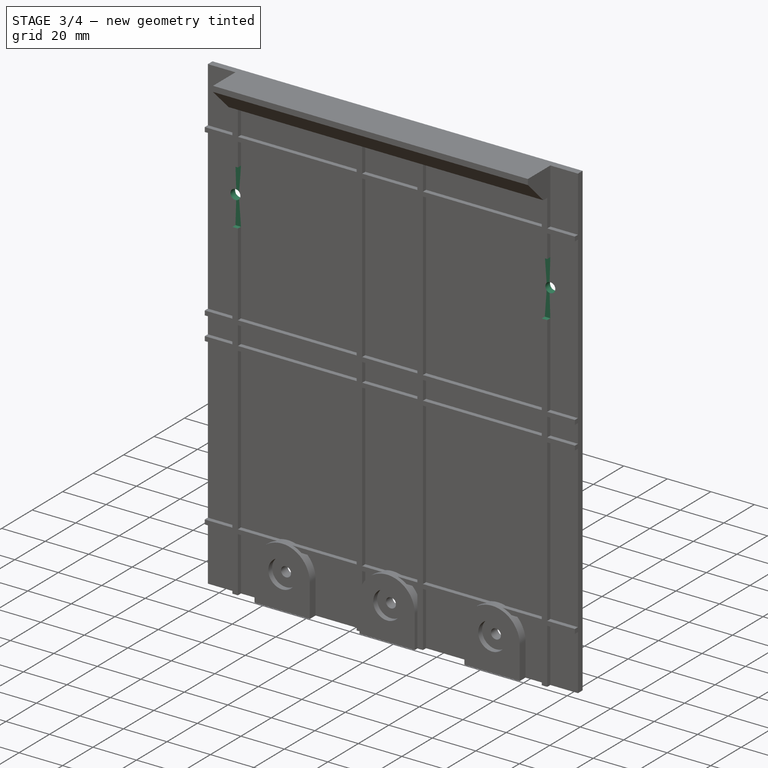
[diagram: stage 3 of 4 — iso view after this stage's code; geometry added in this stage tinted green]
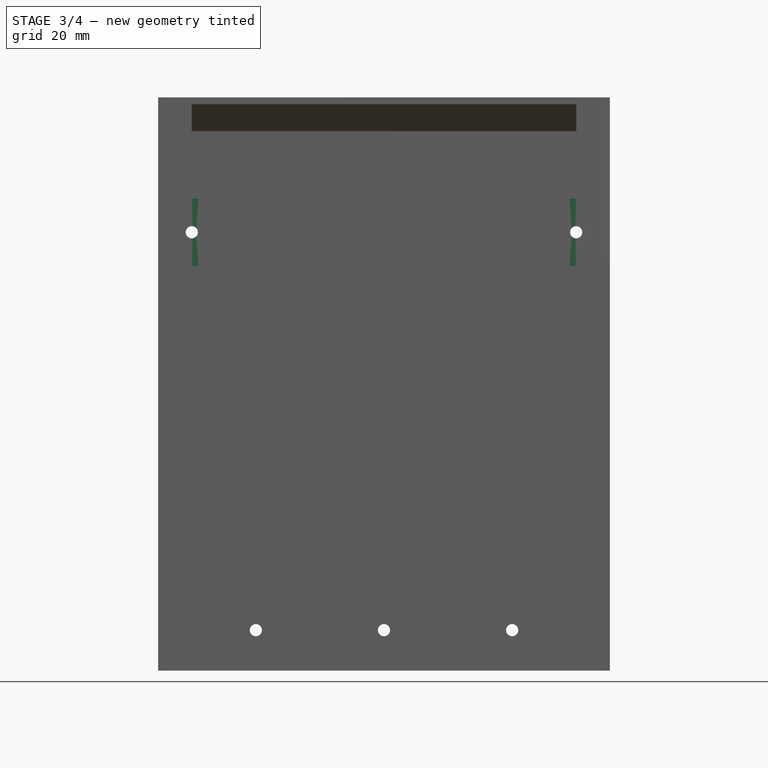
[diagram: stage 3 of 4 — front view after this stage's code; geometry added in this stage tinted green]
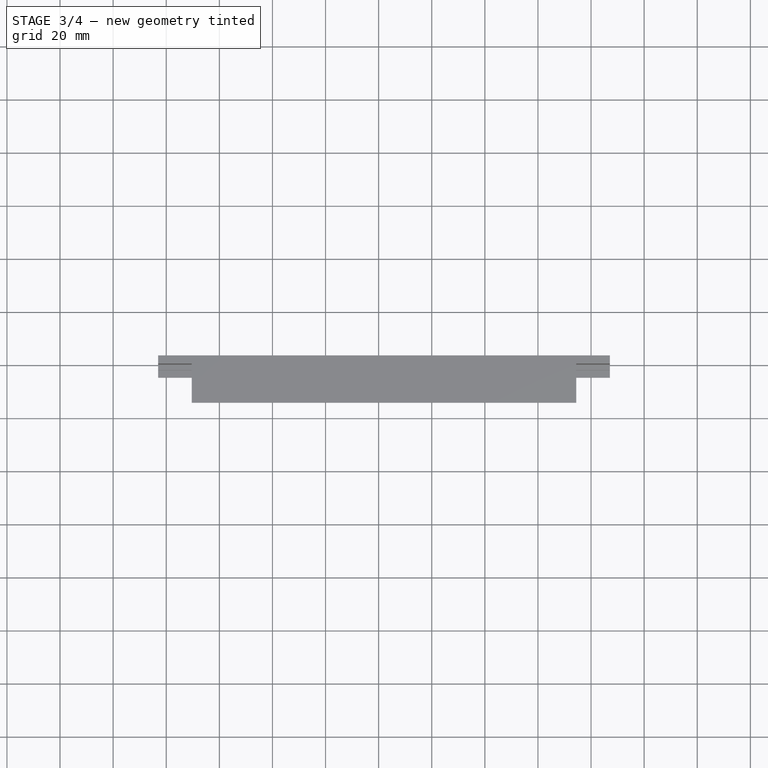
[diagram: stage 3 of 4 — top view after this stage's code; geometry added in this stage tinted green]
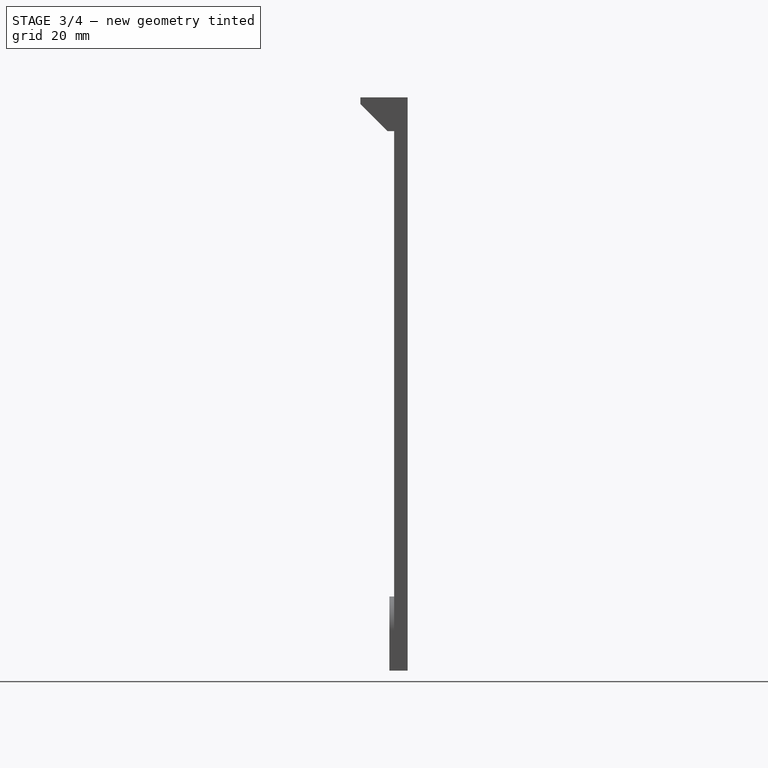
[diagram: stage 3 of 4 — right view after this stage's code; geometry added in this stage tinted green]
FEATURE [PartDesign::Pocket] Pocket002
  BaseFeature = -> Pad003
  Length = 2.032
  Length2 = 100
  Placement = pos=(0,0,0) rot=(1,0,0;1.5708rad)
  Profile = -> Sketch008
  Reversed = true
  Type = 0
FEATURE [PartDesign::Pocket] Pocket003
  BaseFeature = -> Pocket002
  Length = 4.572
  Length2 = 100
  Placement = pos=(0,0,0) rot=(1,0,0;1.5708rad)
  Profile = -> Sketch009
  Type = 0
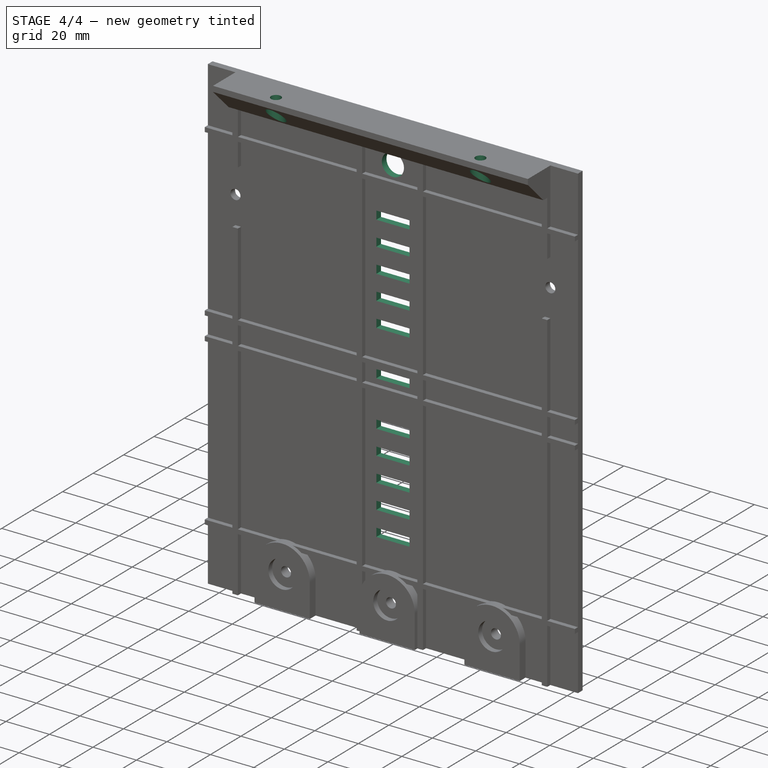
[diagram: stage 4 of 4 — iso view after this stage's code; geometry added in this stage tinted green]
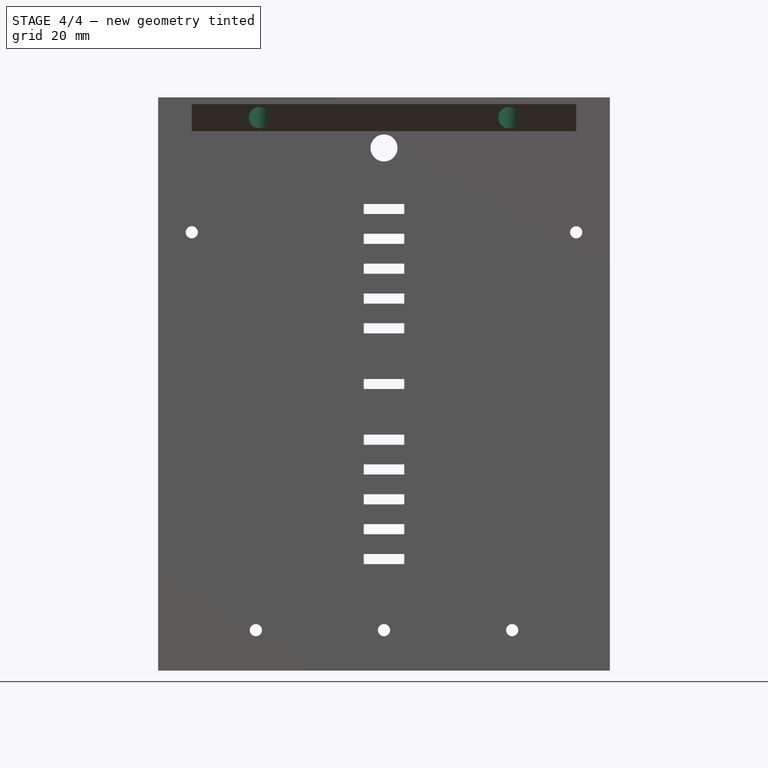
[diagram: stage 4 of 4 — front view after this stage's code; geometry added in this stage tinted green]
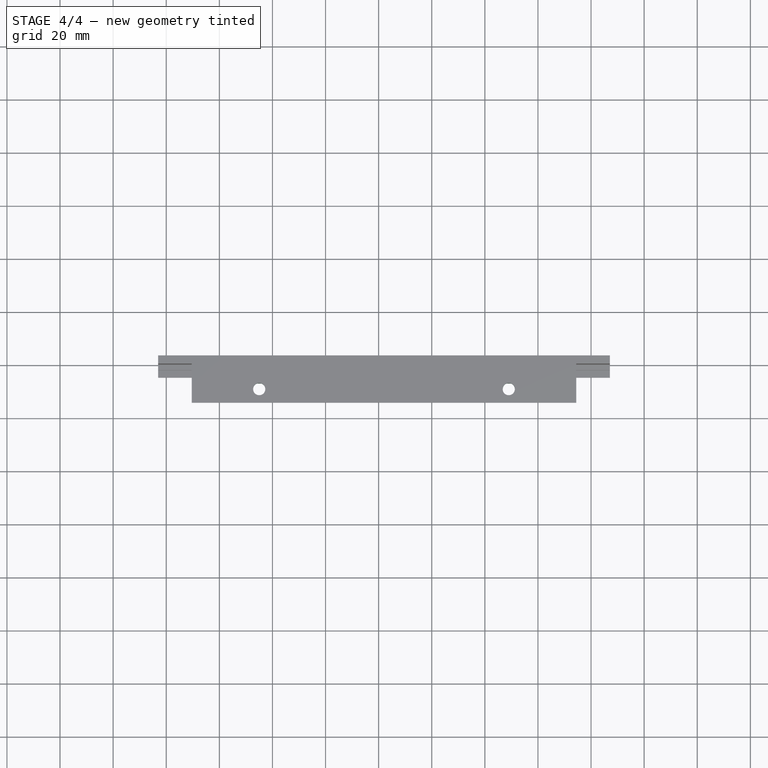
[diagram: stage 4 of 4 — top view after this stage's code; geometry added in this stage tinted green]
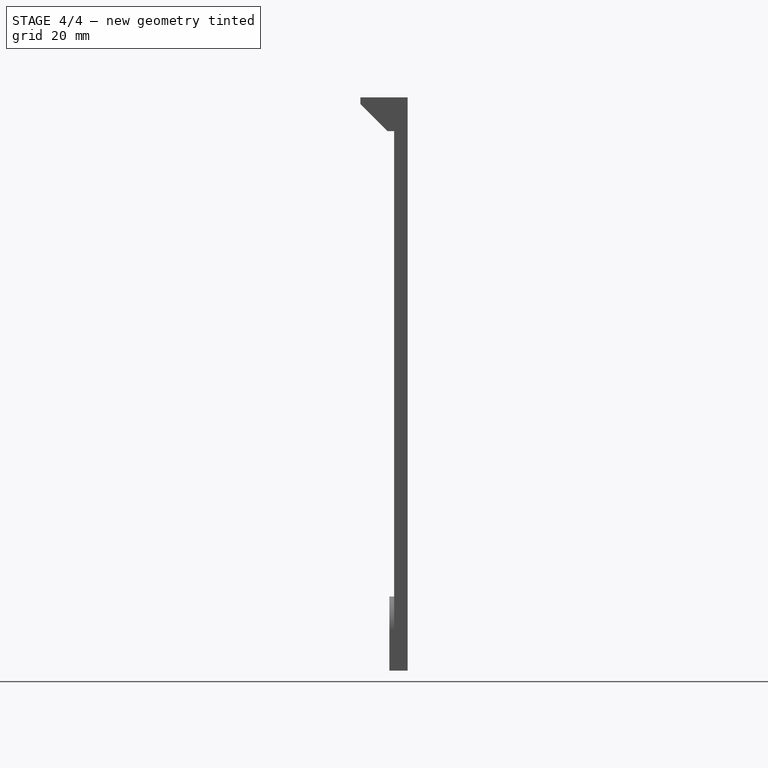
[diagram: stage 4 of 4 — right view after this stage's code; geometry added in this stage tinted green]
FEATURE [Sketcher::SketchObject] Sketch010
  ExternalGeometry = -> [Pocket003]
  MapMode = 5
  Placement = pos=(-2.1e-14,3.18e-14,95.6646) rot=(1,0,0;3.14159rad)
  Support = -> [Pocket003]
  sketch-geometry (6):
    g0: LineSegment [constr] StartX=-70.3744 StartY=12.7 StartZ=0 EndX=-44.9744 EndY=12.7 EndZ=0
    g1: LineSegment [constr] StartX=-44.9744 StartY=12.7 StartZ=0 EndX=49.0056 EndY=12.7 EndZ=0
    g2: LineSegment [constr] StartX=49.0056 StartY=12.7 StartZ=0 EndX=74.4056 EndY=12.7 EndZ=0
    g3: LineSegment [constr] StartX=-44.9744 StartY=12.7 StartZ=0 EndX=-44.9744 EndY=0 EndZ=0
    g4: Circle CenterX=-44.9744 CenterY=12.7 CenterZ=0 NormalX=0 NormalY=0 NormalZ=1 AngleXU=0 Radius=2.286
    g5: Circle CenterX=49.0056 CenterY=12.7 CenterZ=0 NormalX=0 NormalY=0 NormalZ=1 AngleXU=0 Radius=2.286
  constraints (17):
    c: PointOnObject(g0,g-3)
    c: Horizontal(g0)
    c: Coincident(g1,g0)
    c: Horizontal(g1)
    c: Coincident(g2,g1)
    c: PointOnObject(g2,g-5)
    c: Horizontal(g2)
    c: Equal(g0,g2)
    c: Distance(g0) = 25.4
    c: Coincident(g3,g0)
    c: PointOnObject(g3,g-6)
    c: Vertical(g3)
    c: Distance(g3) = 12.7
    c: Coincident(g4,g0)
    c: Coincident(g5,g1)
    c: Equal(g4,g5)
    c: Diameter(g4) = 4.572
FEATURE [PartDesign::Hole] Hole
  BaseFeature = -> Pocket003
  Depth = 25.4
  DepthType = 0
  Diameter = 4.572
  DrillPoint = 1
  DrillPointAngle = 118
  HoleCutCountersinkAngle = 90
  HoleCutDepth = 9.144
  HoleCutDiameter = 8.001
  HoleCutType = 1
  ModelActualThread = false
  Placement = pos=(0,0,0) rot=(1,0,0;1.5708rad)
  Profile = -> Sketch010
  Tapered = false
  TaperedAngle = 90
  ThreadAngle = 0
  ThreadClass = 0
  ThreadCutOffInner = 0
  ThreadCutOffOuter = 0
  ThreadDirection = 0
  ThreadFit = 0
  ThreadPitch = 0
  ThreadSize = 0
  ThreadType = 0
  Threaded = false
FEATURE [Sketcher::SketchObject] Sketch011
  ExternalGeometry = -> [Hole]
  MapMode = 5
  Placement = pos=(0,-3.048,0) rot=(1,0,0;1.5708rad)
  Support = -> [Hole]
  sketch-geometry (59):
    g0: LineSegment StartX=-5.60439 StartY=68.2326 StartZ=0 EndX=9.63561 EndY=68.2326 EndZ=0
    g1: LineSegment StartX=9.63561 StartY=68.2326 StartZ=0 EndX=9.63561 EndY=64.4226 EndZ=0
    g2: LineSegment StartX=9.63561 StartY=64.4226 StartZ=0 EndX=-5.60439 EndY=64.4226 EndZ=0
    g3: LineSegment StartX=-5.60439 StartY=64.4226 StartZ=0 EndX=-5.60439 EndY=68.2326 EndZ=0
    g4: LineSegment StartX=-5.60439 StartY=56.9931 StartZ=0 EndX=9.63561 EndY=56.9931 EndZ=0
    g5: LineSegment StartX=9.63561 StartY=56.9931 StartZ=0 EndX=9.63561 EndY=53.1831 EndZ=0
    g6: LineSegment StartX=9.63561 StartY=53.1831 StartZ=0 EndX=-5.60439 EndY=53.1831 EndZ=0
    g7: LineSegment StartX=-5.60439 StartY=53.1831 StartZ=0 EndX=-5.60439 EndY=56.9931 EndZ=0
    g8: LineSegment StartX=-5.60439 StartY=45.7536 StartZ=0 EndX=9.63561 EndY=45.7536 EndZ=0
    g9: LineSegment StartX=9.63561 StartY=45.7536 StartZ=0 EndX=9.63561 EndY=41.9436 EndZ=0
    g10: LineSegment StartX=9.63561 StartY=41.9436 StartZ=0 EndX=-5.60439 EndY=41.9436 EndZ=0
    g11: LineSegment StartX=-5.60439 StartY=41.9436 StartZ=0 EndX=-5.60439 EndY=45.7536 EndZ=0
    g12: LineSegment StartX=-5.60439 StartY=34.5141 StartZ=0 EndX=9.63561 EndY=34.5141 EndZ=0
    g13: LineSegment StartX=9.63561 StartY=34.5141 StartZ=0 EndX=9.63561 EndY=30.7041 EndZ=0
    g14: LineSegment StartX=9.63561 StartY=30.7041 StartZ=0 EndX=-5.60439 EndY=30.7041 EndZ=0
    g15: LineSegment StartX=-5.60439 StartY=30.7041 StartZ=0 EndX=-5.60439 EndY=34.5141 EndZ=0
    g16: LineSegment StartX=-5.60439 StartY=23.2746 StartZ=0 EndX=9.63561 EndY=23.2746 EndZ=0
    g17: LineSegment StartX=9.63561 StartY=23.2746 StartZ=0 EndX=9.63561 EndY=19.4646 EndZ=0
    g18: LineSegment StartX=9.63561 StartY=19.4646 StartZ=0 EndX=-5.60439 EndY=19.4646 EndZ=0
    g19: LineSegment StartX=-5.60439 StartY=19.4646 StartZ=0 EndX=-5.60439 EndY=23.2746 EndZ=0
    g20: LineSegment StartX=-5.60439 StartY=2.31964 StartZ=0 EndX=9.63561 EndY=2.31964 EndZ=0
    g21: LineSegment StartX=9.63561 StartY=2.31964 StartZ=0 EndX=9.63561 EndY=-1.49036 EndZ=0
    g22: LineSegment StartX=9.63561 StartY=-1.49036 StartZ=0 EndX=-5.60439 EndY=-1.49036 EndZ=0
    g23: LineSegment StartX=-5.60439 StartY=-1.49036 StartZ=0 EndX=-5.60439 EndY=2.31964 EndZ=0
    g24: LineSegment StartX=-5.60439 StartY=-18.6354 StartZ=0 EndX=9.63561 EndY=-18.6354 EndZ=0
    g25: LineSegment StartX=9.63561 StartY=-18.6354 StartZ=0 EndX=9.63561 EndY=-22.4454 EndZ=0
    g26: LineSegment StartX=9.63561 StartY=-22.4454 StartZ=0 EndX=-5.60439 EndY=-22.4454 EndZ=0
    g27: LineSegment StartX=-5.60439 StartY=-22.4454 StartZ=0 EndX=-5.60439 EndY=-18.6354 EndZ=0
    g28: LineSegment StartX=-5.60439 StartY=-29.8749 StartZ=0 EndX=9.63561 EndY=-29.8749 EndZ=0
    g29: LineSegment StartX=9.63561 StartY=-29.8749 StartZ=0 EndX=9.63561 EndY=-33.6849 EndZ=0
    g30: LineSegment StartX=9.63561 StartY=-33.6849 StartZ=0 EndX=-5.60439 EndY=-33.6849 EndZ=0
    g31: LineSegment StartX=-5.60439 StartY=-33.6849 StartZ=0 EndX=-5.60439 EndY=-29.8749 EndZ=0
    g32: LineSegment StartX=-5.60439 StartY=-41.1144 StartZ=0 EndX=9.63561 EndY=-41.1144 EndZ=0
    g33: LineSegment StartX=9.63561 StartY=-41.1144 StartZ=0 EndX=9.63561 EndY=-44.9244 EndZ=0
    g34: LineSegment StartX=9.63561 StartY=-44.9244 StartZ=0 EndX=-5.60439 EndY=-44.9244 EndZ=0
    g35: LineSegment StartX=-5.60439 StartY=-44.9244 StartZ=0 EndX=-5.60439 EndY=-41.1144 EndZ=0
    g36: LineSegment StartX=-5.60439 StartY=-52.3539 StartZ=0 EndX=9.63561 EndY=-52.3539 EndZ=0
    g37: LineSegment StartX=9.63561 StartY=-52.3539 StartZ=0 EndX=9.63561 EndY=-56.1639 EndZ=0
    g38: LineSegment StartX=9.63561 StartY=-56.1639 StartZ=0 EndX=-5.60439 EndY=-56.1639 EndZ=0
    g39: LineSegment StartX=-5.60439 StartY=-56.1639 StartZ=0 EndX=-5.60439 EndY=-52.3539 EndZ=0
    g40: LineSegment StartX=-5.60439 StartY=-63.5934 StartZ=0 EndX=9.63561 EndY=-63.5934 EndZ=0
    g41: LineSegment StartX=9.63561 StartY=-63.5934 StartZ=0 EndX=9.63561 EndY=-67.4034 EndZ=0
    g42: LineSegment StartX=9.63561 StartY=-67.4034 StartZ=0 EndX=-5.60439 EndY=-67.4034 EndZ=0
    g43: LineSegment StartX=-5.60439 StartY=-67.4034 StartZ=0 EndX=-5.60439 EndY=-63.5934 EndZ=0
    g44: LineSegment [constr] StartX=-5.60439 StartY=80.9326 StartZ=0 EndX=-5.60439 EndY=68.2326 EndZ=0
    g45: LineSegment [constr] StartX=-5.60439 StartY=64.4226 StartZ=0 EndX=-5.60439 EndY=56.9931 EndZ=0
    g46: LineSegment [constr] StartX=-5.60439 StartY=53.1831 StartZ=0 EndX=-5.60439 EndY=45.7536 EndZ=0
    g47: LineSegment [constr] StartX=-5.60439 StartY=41.9436 StartZ=0 EndX=-5.60439 EndY=34.5141 EndZ=0
    g48: LineSegment [constr] StartX=-5.60439 StartY=30.7041 StartZ=0 EndX=-5.60439 EndY=23.2746 EndZ=0
    g49: LineSegment [constr] StartX=-5.60439 StartY=19.4646 StartZ=0 EndX=-5.60439 EndY=6.76464 EndZ=0
    g50: LineSegment [constr] StartX=-5.60439 StartY=6.76464 StartZ=0 EndX=-5.60439 EndY=2.31964 EndZ=0
    g51: LineSegment [constr] StartX=-5.60439 StartY=-1.49036 StartZ=0 EndX=-5.60439 EndY=-5.93536 EndZ=0
    g52: LineSegment [constr] StartX=-5.60439 StartY=68.2326 StartZ=0 EndX=-10.6844 EndY=68.2326 EndZ=0
    g53: LineSegment [constr] StartX=9.63561 StartY=68.2326 StartZ=0 EndX=14.7156 EndY=68.2326 EndZ=0
    g54: LineSegment [constr] StartX=-5.60439 StartY=-5.93536 StartZ=0 EndX=-5.60439 EndY=-18.6354 EndZ=0
    g55: LineSegment [constr] StartX=-5.60439 StartY=-22.4454 StartZ=0 EndX=-5.60439 EndY=-29.8749 EndZ=0
    g56: LineSegment [constr] StartX=-5.60439 StartY=-33.6849 StartZ=0 EndX=-5.60439 EndY=-41.1144 EndZ=0
    g57: LineSegment [constr] StartX=-5.60439 StartY=-52.3539 StartZ=0 EndX=-5.60439 EndY=-44.9244 EndZ=0
    g58: LineSegment [constr] StartX=-5.60439 StartY=-56.1639 StartZ=0 EndX=-5.60439 EndY=-63.5934 EndZ=0
  constraints (167):
    c: Coincident(g0,g1)
    c: Coincident(g1,g2)
    c: Coincident(g2,g3)
    c: Coincident(g3,g0)
    c: Horizontal(g0)
    c: Horizontal(g2)
    c: Vertical(g1)
    c: Vertical(g3)
    c: Coincident(g4,g5)
    c: Coincident(g5,g6)
    c: Coincident(g6,g7)
    c: Coincident(g7,g4)
    c: Horizontal(g4)
    c: Horizontal(g6)
    c: Vertical(g5)
    c: Vertical(g7)
    c: Coincident(g8,g9)
    c: Coincident(g9,g10)
    c: Coincident(g10,g11)
    c: Coincident(g11,g8)
    c: Horizontal(g8)
    c: Horizontal(g10)
    c: Vertical(g9)
    c: Vertical(g11)
    c: Coincident(g12,g13)
    c: Coincident(g13,g14)
    c: Coincident(g14,g15)
    c: Coincident(g15,g12)
    c: Horizontal(g12)
    c: Horizontal(g14)
    c: Vertical(g13)
    c: Vertical(g15)
    c: Coincident(g16,g17)
    c: Coincident(g17,g18)
    c: Coincident(g18,g19)
    c: Coincident(g19,g16)
    c: Horizontal(g16)
    c: Horizontal(g18)
    c: Vertical(g17)
    c: Vertical(g19)
    c: Coincident(g20,g21)
    c: Coincident(g21,g22)
    c: Coincident(g22,g23)
    c: Coincident(g23,g20)
    c: Horizontal(g20)
    c: Horizontal(g22)
    c: Vertical(g21)
    c: Vertical(g23)
    c: Coincident(g24,g25)
    c: Coincident(g25,g26)
    c: Coincident(g26,g27)
    c: Coincident(g27,g24)
    c: Horizontal(g24)
    c: Horizontal(g26)
    c: Vertical(g25)
    c: Vertical(g27)
    c: Coincident(g28,g29)
    c: Coincident(g29,g30)
    c: Coincident(g30,g31)
    c: Coincident(g31,g28)
    c: Horizontal(g28)
    c: Horizontal(g30)
    c: Vertical(g29)
    c: Vertical(g31)
    c: Coincident(g32,g33)
    c: Coincident(g33,g34)
    c: Coincident(g34,g35)
    c: Coincident(g35,g32)
    c: Horizontal(g32)
    c: Horizontal(g34)
    c: Vertical(g33)
    c: Vertical(g35)
    c: Coincident(g36,g37)
    c: Coincident(g37,g38)
    c: Coincident(g38,g39)
    c: Coincident(g39,g36)
    c: Horizontal(g36)
    c: Horizontal(g38)
    c: Vertical(g37)
    c: Vertical(g39)
    c: Coincident(g40,g41)
    c: Coincident(g41,g42)
    c: Coincident(g42,g43)
    c: Coincident(g43,g40)
    c: Horizontal(g40)
    c: Horizontal(g42)
    c: Vertical(g41)
    c: Vertical(g43)
    c: Equal(g3,g7)
    c: Equal(g7,g11)
    c: Equal(g11,g15)
    c: Equal(g15,g19)
    c: Equal(g19,g23)
    c: Equal(g23,g27)
    c: Equal(g27,g31)
    c: Equal(g31,g35)
    c: Equal(g35,g39)
    c: Equal(g39,g43)
    c: Equal(g0,g4)
    c: Equal(g4,g8)
    c: Equal(g8,g12)
    c: Equal(g12,g16)
    c: Equal(g16,g20)
    c: Equal(g20,g24)
    c: Equal(g24,g28)
    c: Equal(g28,g32)
    c: Equal(g32,g36)
    c: Equal(g36,g40)
    c: PointOnObject(g44,g-11)
    c: Coincident(g44,g0)
    c: Vertical(g44)
    c: Coincident(g45,g2)
    c: Coincident(g45,g4)
    c: Coincident(g46,g6)
    c: Coincident(g46,g8)
    c: Vertical(g46)
    c: Coincident(g47,g10)
    c: Coincident(g47,g12)
    c: Vertical(g47)
    c: Coincident(g48,g14)
    c: Coincident(g48,g16)
    c: Coincident(g49,g18)
    c: PointOnObject(g49,g-9)
    c: Coincident(g50,g49)
    c: Coincident(g50,g20)
    c: Vertical(g50)
    c: Coincident(g51,g22)
    c: PointOnObject(g51,g-10)
    c: Vertical(g51)
    c: Equal(g51,g50)
    c: Vertical(g49)
    c: Vertical(g48)
    c: Vertical(g45)
    c: Coincident(g52,g0)
    c: PointOnObject(g52,g-3)
    c: Horizontal(g52)
    c: Coincident(g53,g0)
    c: PointOnObject(g53,g-5)
    c: Horizontal(g53)
    c: Equal(g53,g52)
    c: Equal(g45,g46)
    c: Equal(g46,g47)
    c: Equal(g47,g48)
    c: Equal(g44,g49)
    c: Distance(g44) = 12.7
    c: Distance(g17) = 3.81
    c: Distance(g0) = 15.24
    c: Coincident(g54,g51)
    c: Coincident(g54,g24)
    c: Coincident(g55,g26)
    c: Coincident(g55,g28)
    c: Vertical(g55)
    c: Coincident(g56,g30)
    c: Coincident(g56,g32)
    c: Coincident(g57,g36)
    c: Coincident(g57,g34)
    c: Coincident(g58,g38)
    c: Coincident(g58,g40)
    c: Vertical(g58)
    c: Vertical(g57)
    c: Vertical(g56)
    c: Vertical(g54)
    c: Equal(g49,g54)
    c: Equal(g55,g56)
    c: Equal(g56,g57)
    c: Equal(g57,g58)
    c: Equal(g48,g55)
FEATURE [PartDesign::Pocket] Pocket004
  BaseFeature = -> Hole
  Length = 3.048
  Length2 = 100
  Placement = pos=(0,0,0) rot=(1,0,0;1.5708rad)
  Profile = -> Sketch011
  Type = 0
FEATURE [Sketcher::SketchObject] Sketch012
  ExternalGeometry = -> [Pocket004]
  MapMode = 5
  Placement = pos=(0,-3.048,0) rot=(1,0,0;1.5708rad)
  Support = -> [Pocket004]
  sketch-geometry (3):
    g0: LineSegment [constr] StartX=-10.6844 StartY=95.6646 StartZ=0 EndX=14.7156 EndY=82.9646 EndZ=0
    g1: LineSegment [constr] StartX=-10.6844 StartY=82.9646 StartZ=0 EndX=14.7156 EndY=95.6646 EndZ=0
    g2: Circle CenterX=2.01561 CenterY=89.3146 CenterZ=0 NormalX=0 NormalY=0 NormalZ=1 AngleXU=0 Radius=5.08
  constraints (7):
    c: Coincident(g0,g-3)
    c: Coincident(g0,g-4)
    c: Coincident(g1,g-3)
    c: Coincident(g1,g-4)
    c: PointOnObject(g2,g0)
    c: PointOnObject(g2,g1)
    c: Diameter(g2) = 10.16
FEATURE [PartDesign::Pocket] Pocket005
  BaseFeature = -> Pocket004
  Length = 4.99999
  Length2 = 100
  Placement = pos=(0,0,0) rot=(1,0,0;1.5708rad)
  Profile = -> Sketch012
  Type = 0
FEATURE [PartDesign::Body] Body
  Group = -> [Sketch,Pad,Sketch001,Pad001,Sketch002,Pocket,Sketch003,Pocket001,Sketch004,Pad002,Sketch007,Sketch008,Sketch009,Pad003,Pocket002,Pocket003,Sketch010,Hole,Sketch011,Pocket004,Sketch012,Pocket005]
  Origin = -> Origin
  Tip = -> Pocket005
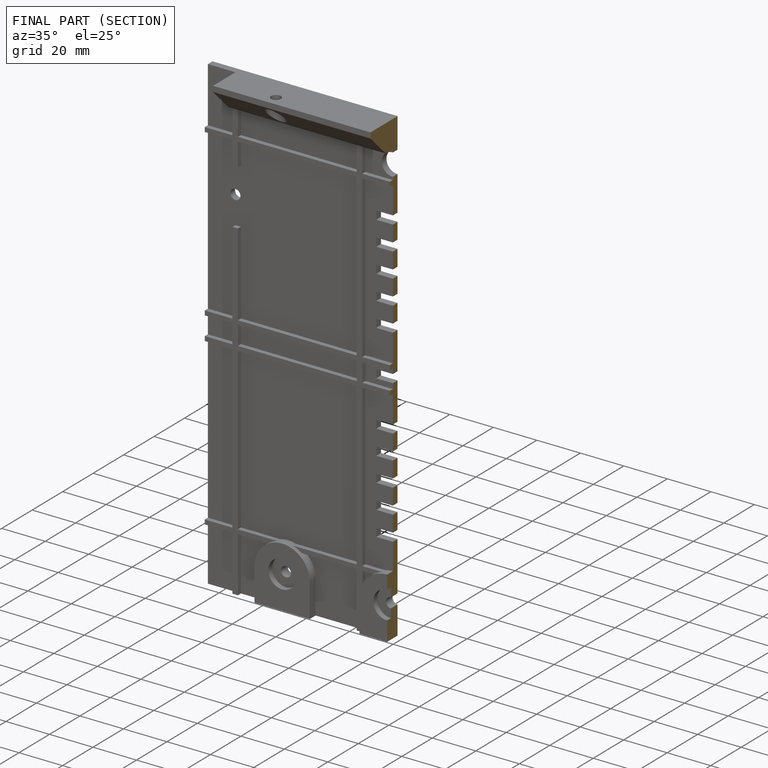
[diagram: finished part — half-section view (interior)]
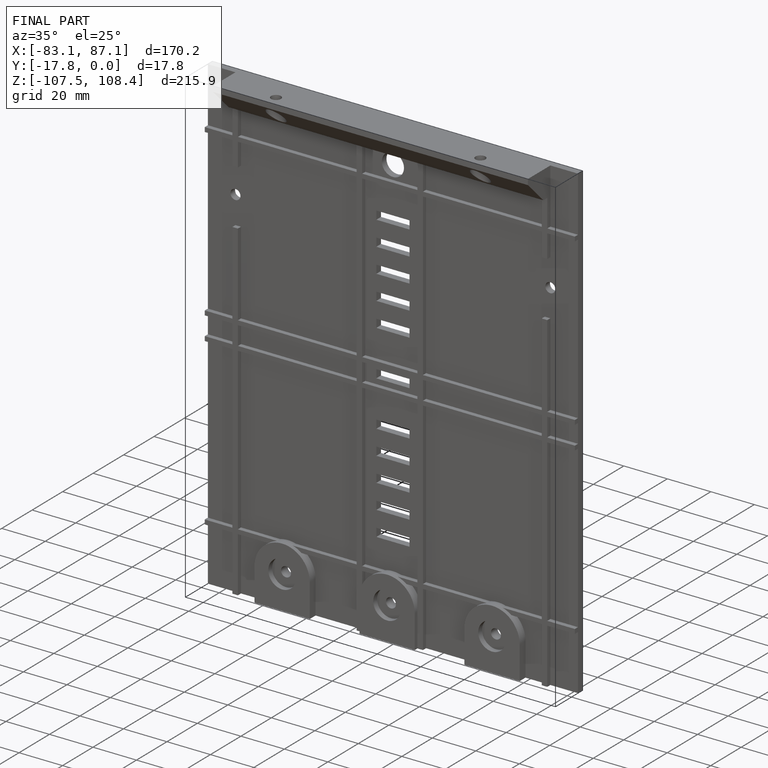
[diagram: finished part — iso view with bounding-box wireframe]
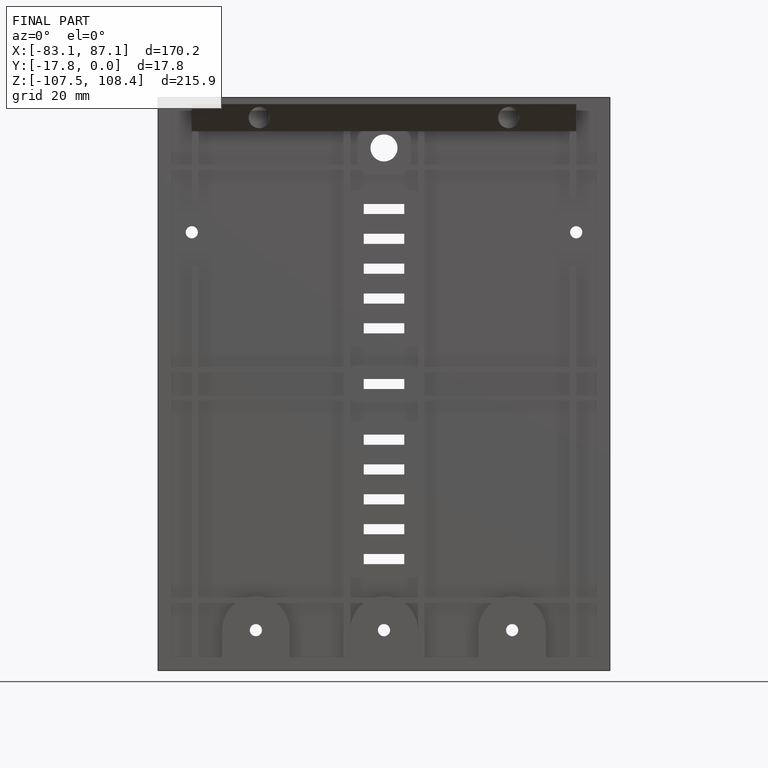
[diagram: finished part — front view with bounding-box wireframe]
